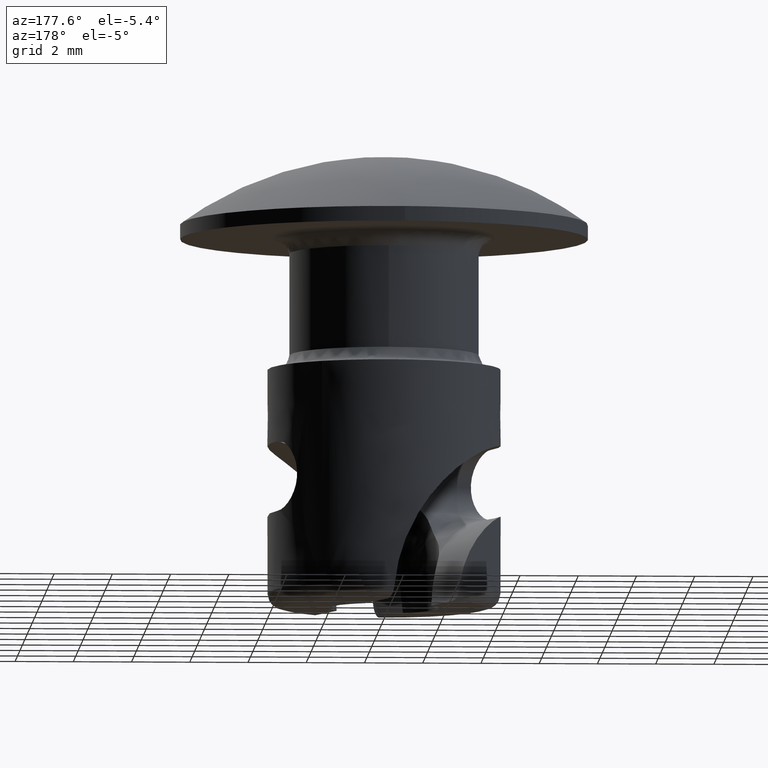
[diagram: clean part render]
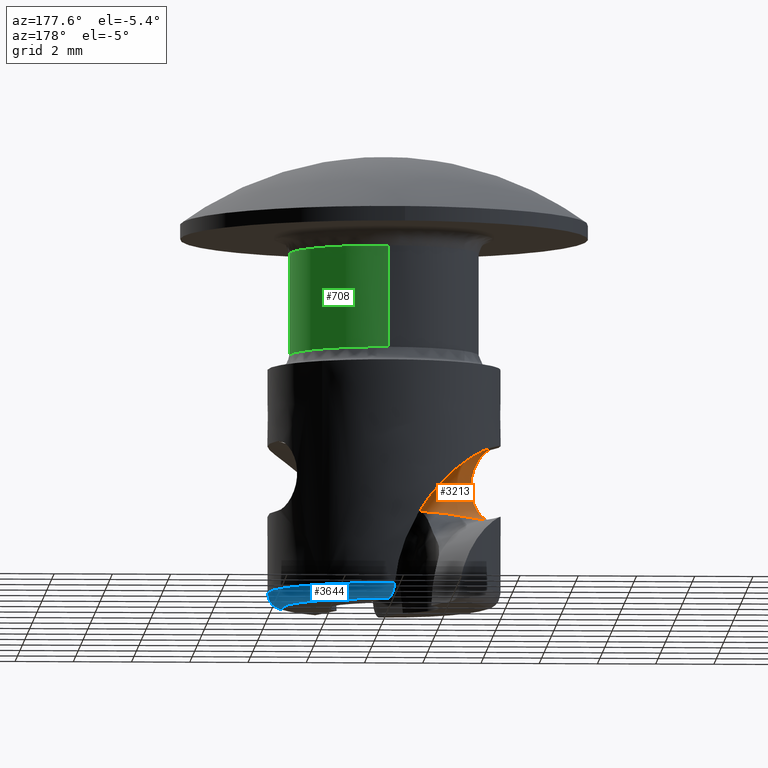
[diagram: same view with three faces highlighted in distinct colors, each labeled with its STEP entity id]
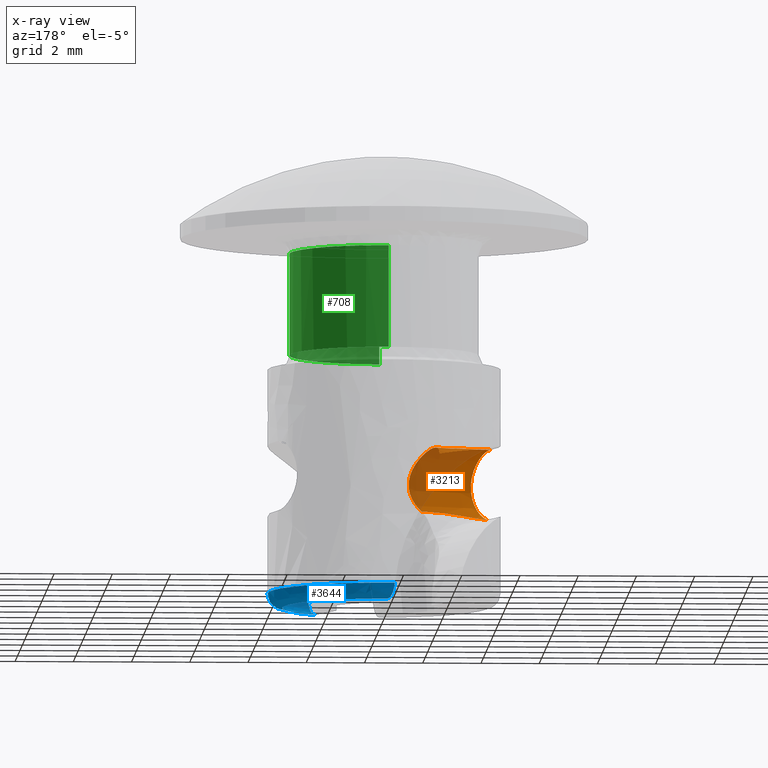
[diagram: x-ray of the same camera — body ghosted, the three highlighted faces saturated]
A machine part, auxiliary view with three faces highlighted in distinct colors.
The next image is the same camera in x-ray (body ghosted, the three faces saturated) — at least one of them is partly hidden behind the body in this view.
Their STEP definitions:

[orange] entity #3213 — the highlighted face is a freeform B-spline surface patch.
#1164=CARTESIAN_POINT('',(-3.708735643717875,-1.498425815653404,-7.100000000000001));
#1165=VERTEX_POINT('',#1164);
#1166=CARTESIAN_POINT('',(-1.898896847195745,0.064736108240685,-7.380760228911340));
#1167=VERTEX_POINT('',#1166);
#1168=CARTESIAN_POINT('',(-3.708735643717875,-1.498425815653404,-7.100000000000001));
#1169=CARTESIAN_POINT('',(-3.710386453232325,-1.489196852446455,-7.100068142243043));
#1170=CARTESIAN_POINT('',(-3.714214481037948,-1.467796001855254,-7.100226155871399));
#1171=CARTESIAN_POINT('',(-3.700999344181360,-1.431293841637874,-7.101366021683869));
#1172=CARTESIAN_POINT('',(-3.678070808442839,-1.388549220752003,-7.103257037905349));
#1173=CARTESIAN_POINT('',(-3.642020029823561,-1.338198967356137,-7.106217927121737));
#1174=CARTESIAN_POINT('',(-3.593864898574778,-1.280419982242171,-7.110404282783682));
#1175=CARTESIAN_POINT('',(-3.533027782695131,-1.215109976291885,-7.116045296349266));
#1176=CARTESIAN_POINT('',(-3.459587618373435,-1.142366680753760,-7.123355109240258));
#1177=CARTESIAN_POINT('',(-3.373425154961361,-1.062260795173573,-7.132564829144597));
#1178=CARTESIAN_POINT('',(-3.274502888659695,-0.974896187154044,-7.143912161318475));
#1179=CARTESIAN_POINT('',(-3.162741271082850,-0.880412771901388,-7.157636030105764));
#1180=CARTESIAN_POINT('',(-3.038137316721293,-0.778879101368198,-7.174007430003282));
#1181=CARTESIAN_POINT('',(-2.787233531452823,-0.582040624438022,-7.208927308146799));
#1182=CARTESIAN_POINT('',(-2.408378123712788,-0.294695881852965,-7.271328472829599));
#1183=CARTESIAN_POINT('',(-2.069827448489790,-0.055852112383694,-7.344045052381786));
#1184=CARTESIAN_POINT('',(-1.898896847195745,0.064736108240685,-7.380760228911340));
#1185=B_SPLINE_CURVE_WITH_KNOTS('',3,(#1168,#1169,#1170,#1171,#1172,#1173,#1174,#1175,#1176,#1177,#1178,#1179,#1180,#1181,#1182,#1183,#1184),.UNSPECIFIED.,.F.,.U.,(4,1,1,1,1,1,1,1,1,1,1,1,1,1,4),(0.0,0.011366425971502,0.026357368484132,0.046197114360368,0.071413319944607,0.102258948170066,0.138870458371748,0.181328750918664,0.229685388931977,0.283975130617349,0.344222465056585,0.410445271268059,0.482656988926023,0.738758493858405,0.999916515789584),.UNSPECIFIED.);
#1186=EDGE_CURVE('',#1165,#1167,#1185,.T.);
#1655=CARTESIAN_POINT('',(-1.337555715592760,-1.349423842862256,-9.236663963031100));
#1656=VERTEX_POINT('',#1655);
#1666=CARTESIAN_POINT('',(-3.708735643717195,-1.498425815655100,-9.500000000000000));
#1667=VERTEX_POINT('',#1666);
#1683=CARTESIAN_POINT('',(-1.337555715592760,-1.349423842862256,-9.236663963031100));
#1684=CARTESIAN_POINT('',(-1.449597428997591,-1.393323958337005,-9.237689944470352));
#1685=CARTESIAN_POINT('',(-1.665490790304757,-1.477916627721316,-9.239665821091686));
#1686=CARTESIAN_POINT('',(-1.984018065734053,-1.581252420455849,-9.258090054720100));
#1687=CARTESIAN_POINT('',(-2.283167802303620,-1.659606081770924,-9.286911477915071));
#1688=CARTESIAN_POINT('',(-2.563976454007749,-1.710629797667233,-9.325059766632526));
#1689=CARTESIAN_POINT('',(-2.827015008560890,-1.732813301009406,-9.369258568397093));
#1690=CARTESIAN_POINT('',(-3.073173302154578,-1.724505233113503,-9.415640363103346));
#1691=CARTESIAN_POINT('',(-3.302442523206412,-1.683284566840836,-9.457967814210614));
#1692=CARTESIAN_POINT('',(-3.516709849021536,-1.611080642470727,-9.492009916046284));
#1693=CARTESIAN_POINT('',(-3.645171148386941,-1.535716884912866,-9.497355117552020));
#1694=CARTESIAN_POINT('',(-3.708735643677130,-1.498425815649185,-9.500000000000000));
#1695=B_SPLINE_CURVE_WITH_KNOTS('',3,(#1683,#1684,#1685,#1686,#1687,#1688,#1689,#1690,#1691,#1692,#1693,#1694),.UNSPECIFIED.,.F.,.U.,(4,1,1,1,1,1,1,1,1,4),(0.000000691033349,0.145114190416765,0.279620765688647,0.404129572421703,0.519408920940005,0.626425579952520,0.726385614219735,0.820765035768605,0.911311966358701,1.0),.UNSPECIFIED.);
#1696=EDGE_CURVE('',#1656,#1667,#1695,.T.);
#2305=CARTESIAN_POINT('',(-1.612172769168467,0.223170469228702,-7.415061260543856));
#2306=CARTESIAN_POINT('',(-1.714721641054724,0.181840315298830,-7.414952191650670));
#2307=CARTESIAN_POINT('',(-1.919618646212488,0.098683161717521,-7.415365771946548));
#2308=CARTESIAN_POINT('',(-2.226853675782332,-0.026326011831136,-7.416556021256146));
#2309=CARTESIAN_POINT('',(-2.534617323434692,-0.150026809146506,-7.415746666482884));
#2310=CARTESIAN_POINT('',(-2.944772652289246,-0.315446821155888,-7.415324375961210));
#2311=CARTESIAN_POINT('',(-3.303574487007340,-0.460397432180070,-7.415322789085359));
#2312=CARTESIAN_POINT('',(-3.611120826007044,-0.584636087517758,-7.415307836104930));
#2313=CARTESIAN_POINT('',(-3.726449958891982,-0.631227425328707,-7.415304758083908));
#2314=CARTESIAN_POINT('',(-3.803336228682831,-0.662287868714538,-7.415301759441087));
#2315=CARTESIAN_POINT('',(-3.835372159543206,-0.675229756968995,-7.415300547384005));
#2316=CARTESIAN_POINT('',(-3.861000913332802,-0.685583245046053,-7.415299525167211));
#2317=CARTESIAN_POINT('',(-3.880222479537792,-0.693348358968356,-7.415298748298612));
#2318=CARTESIAN_POINT('',(-3.896240453342164,-0.699819282368742,-7.415298087400051));
#2319=CARTESIAN_POINT('',(-3.909054833344198,-0.704996018716587,-7.415297551688044));
#2320=CARTESIAN_POINT('',(-3.921869214048127,-0.710172753327181,-7.415297011098836));
#2321=CARTESIAN_POINT('',(-3.937887191202319,-0.716643668436469,-7.415296326492313));
#2322=CARTESIAN_POINT('',(-3.963515957339881,-0.726997125951224,-7.415295212701481));
#2323=CARTESIAN_POINT('',(-4.008366304975885,-0.745115659535645,-7.415293216849501));
#2324=CARTESIAN_POINT('',(-4.046809471112568,-0.760645803903700,-7.415291432312533));
#2325=CARTESIAN_POINT('',(-4.072438252416594,-0.770999223880121,-7.415290216108162));
#2326=CARTESIAN_POINT('',(-1.605308475316878,0.206180738398920,-7.398212250034117));
#2327=CARTESIAN_POINT('',(-1.707869522265669,0.164880718819321,-7.398065003037738));
#2328=CARTESIAN_POINT('',(-1.912752987592754,0.081690052966585,-7.398513926038133));
#2329=CARTESIAN_POINT('',(-2.219956832470942,-0.043396305435854,-7.399831306386271));
#2330=CARTESIAN_POINT('',(-2.527760120668330,-0.166998988916861,-7.398869847464098));
#2331=CARTESIAN_POINT('',(-2.937901272047192,-0.332454091425144,-7.398496368572096));
#2332=CARTESIAN_POINT('',(-3.296703473460298,-0.477403794846930,-7.398495963588476));
#2333=CARTESIAN_POINT('',(-3.604247800941950,-0.601647428868660,-7.398488630259659));
#2334=CARTESIAN_POINT('',(-3.719576783100933,-0.648239139739603,-7.398486145954498));
#2335=CARTESIAN_POINT('',(-3.796462881828642,-0.679300006521746,-7.398483771568070));
#2336=CARTESIAN_POINT('',(-3.828498761950772,-0.692242020357818,-7.398482743838573));
#2337=CARTESIAN_POINT('',(-3.854127474679576,-0.702595610063945,-7.398481869461406));
#2338=CARTESIAN_POINT('',(-3.873349012458219,-0.710360794343960,-7.398481194194758));
#2339=CARTESIAN_POINT('',(-3.889366963610579,-0.716831773810066,-7.398480613828208));
#2340=CARTESIAN_POINT('',(-3.902181326237263,-0.722008553163430,-7.398480139710538));
#2341=CARTESIAN_POINT('',(-3.914995689986145,-0.727185329739257,-7.398479659564844));
#2342=CARTESIAN_POINT('',(-3.931013646760191,-0.733656295291197,-7.398479047983979));
#2343=CARTESIAN_POINT('',(-3.956642381983104,-0.744009829322428,-7.398478043555091));
#2344=CARTESIAN_POINT('',(-4.001492679841844,-0.762128486109955,-7.398476213000564));
#2345=CARTESIAN_POINT('',(-4.039935809271587,-0.777658721330913,-7.398474564663561));
#2346=CARTESIAN_POINT('',(-4.065564568342954,-0.788012196335118,-7.398473419691637));
#2347=CARTESIAN_POINT('',(-1.591211258883126,0.171288888219288,-7.365735048391554));
#2348=CARTESIAN_POINT('',(-1.693760808591860,0.129960411959647,-7.365624070376724));
#2349=CARTESIAN_POINT('',(-1.898793907560646,0.047140102526745,-7.365588953662576));
#2350=CARTESIAN_POINT('',(-2.205730282009415,-0.078608268706002,-7.367826874360685));
#2351=CARTESIAN_POINT('',(-2.513715670376098,-0.201760238256737,-7.366195359996842));
#2352=CARTESIAN_POINT('',(-2.923782501054272,-0.367399291033912,-7.366087749929234));
#2353=CARTESIAN_POINT('',(-3.282599999735564,-0.512311132371920,-7.366037757548056));
#2354=CARTESIAN_POINT('',(-3.590136317249292,-0.636574591768541,-7.366060154358229));
#2355=CARTESIAN_POINT('',(-3.705465581627303,-0.683165604122575,-7.366056686659941));
#2356=CARTESIAN_POINT('',(-3.782351230301128,-0.714227584827652,-7.366055938045084));
#2357=CARTESIAN_POINT('',(-3.814387029147240,-0.727169799829015,-7.366055196281701));
#2358=CARTESIAN_POINT('',(-3.840015659320302,-0.737523593867864,-7.366054611699506));
#2359=CARTESIAN_POINT('',(-3.859237143360188,-0.745288911156025,-7.366054124621324));
#2360=CARTESIAN_POINT('',(-3.875255050927042,-0.751759998500091,-7.366053696095484));
#2361=CARTESIAN_POINT('',(-3.888069380370363,-0.756936859985198,-7.366053336648243));
#2362=CARTESIAN_POINT('',(-3.900883711854176,-0.762113716419907,-7.366052964694525));
#2363=CARTESIAN_POINT('',(-3.916901630019319,-0.768584777532276,-7.366052478014854));
#2364=CARTESIAN_POINT('',(-3.942530306500444,-0.778938456954596,-7.366051667623763));
#2365=CARTESIAN_POINT('',(-3.987380508337274,-0.797057351404794,-7.366050208232453));
#2366=CARTESIAN_POINT('',(-4.025823569280349,-0.812587756136276,-7.366048723859492));
#2367=CARTESIAN_POINT('',(-4.051452286361051,-0.822941335071072,-7.366047742456437));
#2368=CARTESIAN_POINT('',(-1.569020597860986,0.116365051062493,-7.320814050384826));
#2369=CARTESIAN_POINT('',(-1.671545106000825,0.074974594718043,-7.320784333774271));
#2370=CARTESIAN_POINT('',(-1.876619513213482,-0.007743473179224,-7.320603161220080));
#2371=CARTESIAN_POINT('',(-2.183566796025943,-0.133464845252708,-7.322813521735434));
#2372=CARTESIAN_POINT('',(-2.491605404872975,-0.256485089435140,-7.320973286711602));
#2373=CARTESIAN_POINT('',(-2.901584796536194,-0.422340561462458,-7.321182508869049));
#2374=CARTESIAN_POINT('',(-3.260416903127477,-0.567216246938829,-7.321090576184219));
#2375=CARTESIAN_POINT('',(-3.567944628480088,-0.691500972689685,-7.321143427648019));
#2376=CARTESIAN_POINT('',(-3.683274081824700,-0.738091517334765,-7.321139128092915));
#2377=CARTESIAN_POINT('',(-3.760159219593860,-0.769154762573809,-7.321140060709212));
#2378=CARTESIAN_POINT('',(-3.792194916523936,-0.782097229826324,-7.321139634448302));
#2379=CARTESIAN_POINT('',(-3.817823448056331,-0.792451268009495,-7.321139365872941));
#2380=CARTESIAN_POINT('',(-3.837044867565665,-0.800216745016447,-7.321139078324289));
#2381=CARTESIAN_POINT('',(-3.853062723082382,-0.806687961189180,-7.321138810736272));
#2382=CARTESIAN_POINT('',(-3.865877012913823,-0.811864920717172,-7.321138574622552));
#2383=CARTESIAN_POINT('',(-3.878691305398236,-0.817041873678824,-7.321138334512721));
#2384=CARTESIAN_POINT('',(-3.894709176533260,-0.823513051194872,-7.321138020319063));
#2385=CARTESIAN_POINT('',(-3.920337782446128,-0.833866905279835,-7.321137450301793));
#2386=CARTESIAN_POINT('',(-3.965187874879333,-0.851986070513623,-7.321136163601614));
#2387=CARTESIAN_POINT('',(-4.003630850366419,-0.867516686756191,-7.321135163492179));
#2388=CARTESIAN_POINT('',(-4.029259516796008,-0.877870391056945,-7.321134247908669));
#2389=CARTESIAN_POINT('',(-1.545864124032500,0.059050742290329,-7.279761582693141));
#2390=CARTESIAN_POINT('',(-1.648384580499130,0.017650257698440,-7.279740884686689));
#2391=CARTESIAN_POINT('',(-1.853395969615986,-0.065223785526843,-7.279782315304722));
#2392=CARTESIAN_POINT('',(-2.160667460421075,-0.190142714312388,-7.280837285445150));
#2393=CARTESIAN_POINT('',(-2.468493327872639,-0.313689512154017,-7.279702779423403));
#2394=CARTESIAN_POINT('',(-2.878448068506196,-0.479605997647203,-7.280061674097765));
#2395=CARTESIAN_POINT('',(-3.237271767664426,-0.624502492259608,-7.279997884637030));
#2396=CARTESIAN_POINT('',(-3.544799202980122,-0.748787935877332,-7.280053224947674));
#2397=CARTESIAN_POINT('',(-3.660128153776459,-0.795379724373578,-7.280049855460147));
#2398=CARTESIAN_POINT('',(-3.737013079238357,-0.826443495091763,-7.280051479183601));
#2399=CARTESIAN_POINT('',(-3.769048687743557,-0.839386181203621,-7.280051274700470));
#2400=CARTESIAN_POINT('',(-3.794677157401481,-0.849740372531548,-7.280051162047274));
#2401=CARTESIAN_POINT('',(-3.813898531091357,-0.857505962945687,-7.280051004980113));
#2402=CARTESIAN_POINT('',(-3.829916350351822,-0.863977268855831,-7.280050840594212));
#2403=CARTESIAN_POINT('',(-3.842730612068606,-0.869154297970072,-7.280050679460182));
#2404=CARTESIAN_POINT('',(-3.855544878476056,-0.874331315474498,-7.280050470378589));
#2405=CARTESIAN_POINT('',(-3.871562719149138,-0.880802568386533,-7.280050140772008));
#2406=CARTESIAN_POINT('',(-3.897191275876814,-0.891156544209169,-7.280049621041425));
#2407=CARTESIAN_POINT('',(-3.942041271775627,-0.909275948374066,-7.280049180767852));
#2408=CARTESIAN_POINT('',(-3.980484193506738,-0.924806697667398,-7.280047520859425));
#2409=CARTESIAN_POINT('',(-4.006112820810538,-0.935160498807924,-7.280047024620805));
#2410=CARTESIAN_POINT('',(-1.497779456240400,-0.059963038367980,-7.205533351032612));
#2411=CARTESIAN_POINT('',(-1.600296225336511,-0.101372649526120,-7.205521829334859));
#2412=CARTESIAN_POINT('',(-1.805291093196347,-0.184287584315162,-7.205636214006164));
#2413=CARTESIAN_POINT('',(-2.112806065361276,-0.308603875326868,-7.205742088261957));
#2414=CARTESIAN_POINT('',(-2.420388050912274,-0.432754302315856,-7.205566440321289));
#2415=CARTESIAN_POINT('',(-2.830414284791883,-0.598493835738978,-7.205640069975024));
#2416=CARTESIAN_POINT('',(-3.189193593457274,-0.743500200724228,-7.205773552679972));
#2417=CARTESIAN_POINT('',(-3.496742270605132,-0.867733068939642,-7.205722371631375));
#2418=CARTESIAN_POINT('',(-3.612067621945282,-0.914333766406436,-7.205732801996868));
#2419=CARTESIAN_POINT('',(-3.688953143749545,-0.945396061124832,-7.205730474476900));
#2420=CARTESIAN_POINT('',(-3.720988616136321,-0.958339084141758,-7.205730559086129));
#2421=CARTESIAN_POINT('',(-3.746617065281775,-0.968693326239854,-7.205730363646636));
#2422=CARTESIAN_POINT('',(-3.765838411604881,-0.976458984389154,-7.205730096889041));
#2423=CARTESIAN_POINT('',(-3.781856213074878,-0.982930334332270,-7.205729836114294));
#2424=CARTESIAN_POINT('',(-3.794670459769159,-0.988107400628528,-7.205729645634836));
#2425=CARTESIAN_POINT('',(-3.807484701086484,-0.993284480233221,-7.205729724036694));
#2426=CARTESIAN_POINT('',(-3.823502502799987,-0.999755829573637,-7.205730141850259));
#2427=CARTESIAN_POINT('',(-3.849131016841790,-1.010109911047564,-7.205730230918503));
#2428=CARTESIAN_POINT('',(-3.893981054868957,-1.028229210941079,-7.205725145322822));
#2429=CARTESIAN_POINT('',(-3.932423852620100,-1.043760267095735,-7.205729721289425));
#2430=CARTESIAN_POINT('',(-3.958052440049012,-1.054114166930114,-7.205726963807105));
#2431=CARTESIAN_POINT('',(-1.454316586836566,-0.167537461640975,-7.160481461309396));
#2432=CARTESIAN_POINT('',(-1.556831107303570,-0.208952638353865,-7.160476983144488));
#2433=CARTESIAN_POINT('',(-1.761841282172478,-0.291829686949581,-7.160551880195361));
#2434=CARTESIAN_POINT('',(-2.069350392917621,-0.416160485490623,-7.160659785502281));
#2435=CARTESIAN_POINT('',(-2.376897954570202,-0.540396114654935,-7.160625020281434));
#2436=CARTESIAN_POINT('',(-2.786987838775635,-0.705978107925153,-7.160460568138732));
#2437=CARTESIAN_POINT('',(-3.145753133697066,-0.851019158158864,-7.160629306571867));
#2438=CARTESIAN_POINT('',(-3.453302314366431,-0.975250780114276,-7.160582312315054));
#2439=CARTESIAN_POINT('',(-3.568629706679442,-1.021846425993785,-7.160586105810319));
#2440=CARTESIAN_POINT('',(-3.645515268689580,-1.052908621199109,-7.160585220247742));
#2441=CARTESIAN_POINT('',(-3.677550850524618,-1.065851373321963,-7.160584928682276));
#2442=CARTESIAN_POINT('',(-3.703179360934834,-1.076205463784380,-7.160584346923580));
#2443=CARTESIAN_POINT('',(-3.722400722427566,-1.083971084387524,-7.160584233503497));
#2444=CARTESIAN_POINT('',(-3.738418525848351,-1.090442429502266,-7.160584109216591));
#2445=CARTESIAN_POINT('',(-3.751232767988932,-1.095619507069333,-7.160583934369400));
#2446=CARTESIAN_POINT('',(-3.764047031390315,-1.100796532014041,-7.160583129726693));
#2447=CARTESIAN_POINT('',(-3.780064876494039,-1.107267773959845,-7.160581360278741));
#2448=CARTESIAN_POINT('',(-3.805693391952302,-1.117621851927910,-7.160579712992286));
#2449=CARTESIAN_POINT('',(-3.850543068622094,-1.135742046212701,-7.160588234464072));
#2450=CARTESIAN_POINT('',(-3.888985984276249,-1.151272810547037,-7.160575247807144));
#2451=CARTESIAN_POINT('',(-3.914614521170596,-1.161626835458907,-7.160579368336693));
#2452=CARTESIAN_POINT('',(-1.382122777048542,-0.346223488549772,-7.112069750705599));
#2453=CARTESIAN_POINT('',(-1.484633793718534,-0.387647337468340,-7.112080828390511));
#2454=CARTESIAN_POINT('',(-1.689662167351537,-0.470479342522785,-7.112053986184090));
#2455=CARTESIAN_POINT('',(-1.997196138167256,-0.594748610203313,-7.112089657188884));
#2456=CARTESIAN_POINT('',(-2.304739325861555,-0.718995065298954,-7.112082788723071));
#2457=CARTESIAN_POINT('',(-2.714786334556672,-0.884683179227059,-7.112110156117329));
#2458=CARTESIAN_POINT('',(-3.073587704363304,-1.029634940947990,-7.112093776404535));
#2459=CARTESIAN_POINT('',(-3.381127423210439,-1.153889981745361,-7.112099526780538));
#2460=CARTESIAN_POINT('',(-3.496455122247925,-1.200484868454825,-7.112098674352385));
#2461=CARTESIAN_POINT('',(-3.573340469298981,-1.231547595702762,-7.112091635035596));
#2462=CARTESIAN_POINT('',(-3.605375951675340,-1.244490593994598,-7.112090824653329));
#2463=CARTESIAN_POINT('',(-3.631004291301832,-1.254845107161762,-7.112090752287984));
#2464=CARTESIAN_POINT('',(-3.650225621200741,-1.262610805962397,-7.112089602874351));
#2465=CARTESIAN_POINT('',(-3.666243407335076,-1.269082193862623,-7.112088698654174));
#2466=CARTESIAN_POINT('',(-3.679057646753322,-1.274259278167703,-7.112088252274037));
#2467=CARTESIAN_POINT('',(-3.691871814012087,-1.279436541073850,-7.112090139025095));
#2468=CARTESIAN_POINT('',(-3.707889476890264,-1.285908234043907,-7.112095326388516));
#2469=CARTESIAN_POINT('',(-3.733517903638351,-1.296262531577453,-7.112099202215167));
#2470=CARTESIAN_POINT('',(-3.778368571406986,-1.314380272805470,-7.112063521527370));
#2471=CARTESIAN_POINT('',(-3.816810911065241,-1.329912462780297,-7.112108358445170));
#2472=CARTESIAN_POINT('',(-3.842439487289233,-1.340266390347837,-7.112090671351684));
#2473=CARTESIAN_POINT('',(-1.345273551836011,-0.437428560940713,-7.099983720398764));
#2474=CARTESIAN_POINT('',(-1.447787184479768,-0.478845935094202,-7.099981094433432));
#2475=CARTESIAN_POINT('',(-1.652810967955223,-0.561689301192166,-7.100004690265615));
#2476=CARTESIAN_POINT('',(-1.960347659677395,-0.685951834389990,-7.100011850967778));
#2477=CARTESIAN_POINT('',(-2.267887890856202,-0.810205607121430,-7.100004185393339));
#2478=CARTESIAN_POINT('',(-2.677942342652626,-0.975875298719360,-7.099999838318336));
#2479=CARTESIAN_POINT('',(-3.036736253634276,-1.120845521687939,-7.100013165066035));
#2480=CARTESIAN_POINT('',(-3.344278629351832,-1.245093986497412,-7.100006559293297));
#2481=CARTESIAN_POINT('',(-3.459606922249638,-1.291687403350367,-7.100007536684326));
#2482=CARTESIAN_POINT('',(-3.536492157022819,-1.322750408495936,-7.100015077237440));
#2483=CARTESIAN_POINT('',(-3.568527668891904,-1.335693333790675,-7.100017928661940));
#2484=CARTESIAN_POINT('',(-3.594156074537366,-1.346047683555071,-7.100020014539774));
#2485=CARTESIAN_POINT('',(-3.613377325439832,-1.353813577878846,-7.100021886457047));
#2486=CARTESIAN_POINT('',(-3.629395035235179,-1.360285154724784,-7.100022546949612));
#2487=CARTESIAN_POINT('',(-3.642209209463862,-1.365462400379770,-7.100021769258292));
#2488=CARTESIAN_POINT('',(-3.655023580146762,-1.370639159793288,-7.100014862555431));
#2489=CARTESIAN_POINT('',(-3.671041688206054,-1.377109750900937,-7.099998989417751));
#2490=CARTESIAN_POINT('',(-3.696670295464202,-1.387463601656216,-7.099984144206171));
#2491=CARTESIAN_POINT('',(-3.741518094205723,-1.405588443978586,-7.100078483048273));
#2492=CARTESIAN_POINT('',(-3.779961985441076,-1.421116793663688,-7.099943245836787));
#2493=CARTESIAN_POINT('',(-3.805590386240568,-1.431471155422286,-7.099999006148356));
#2494=CARTESIAN_POINT('',(-1.308425179936231,-0.528631521307568,-7.099990119154501));
#2495=CARTESIAN_POINT('',(-1.410938332829155,-0.570050082886550,-7.099991338326226));
#2496=CARTESIAN_POINT('',(-1.615963839612602,-0.652889183645713,-7.099997192637711));
#2497=CARTESIAN_POINT('',(-1.923502103677547,-0.777147825156923,-7.100003604141426));
#2498=CARTESIAN_POINT('',(-2.231043300407578,-0.901399208064187,-7.099997118969190));
#2499=CARTESIAN_POINT('',(-2.641094304180972,-1.067077433822285,-7.100005572529461));
#2500=CARTESIAN_POINT('',(-2.999889995544494,-1.212043250189189,-7.100010783540560));
#2501=CARTESIAN_POINT('',(-3.307431418433303,-1.336294073333589,-7.100005171871216));
#2502=CARTESIAN_POINT('',(-3.422759475573654,-1.382888073706977,-7.100001274767737));
#2503=CARTESIAN_POINT('',(-3.499644878800158,-1.413950661915757,-7.099996996605950));
#2504=CARTESIAN_POINT('',(-3.531680463437822,-1.426893407101865,-7.099994964712321));
#2505=CARTESIAN_POINT('',(-3.557308930437186,-1.437247605009963,-7.099993483274613));
#2506=CARTESIAN_POINT('',(-3.576530278539201,-1.445013258756307,-7.099992619680718));
#2507=CARTESIAN_POINT('',(-3.592548066015557,-1.451484643334914,-7.099992292332012));
#2508=CARTESIAN_POINT('',(-3.605362294749370,-1.456661754084908,-7.099992260169668));
#2509=CARTESIAN_POINT('',(-3.618176522332405,-1.461838867683180,-7.099992598839472));
#2510=CARTESIAN_POINT('',(-3.634194310663812,-1.468310250145462,-7.099992022224453));
#2511=CARTESIAN_POINT('',(-3.659822766804654,-1.478664474929354,-7.099994405559767));
#2512=CARTESIAN_POINT('',(-3.704672801355910,-1.496783783426057,-7.099927340083124));
#2513=CARTESIAN_POINT('',(-3.743115062420661,-1.512316167926715,-7.100087905178388));
#2514=CARTESIAN_POINT('',(-3.768743710829150,-1.522669916831281,-7.100036306400008));
#2515=CARTESIAN_POINT('',(-1.271250218449813,-0.620642819616936,-7.099994876313550));
#2516=CARTESIAN_POINT('',(-1.373763409911923,-0.662061285733792,-7.099996054757063));
#2517=CARTESIAN_POINT('',(-1.578788658632819,-0.744901025220455,-7.099996599868724));
#2518=CARTESIAN_POINT('',(-1.886328579413167,-0.869155566215374,-7.099999942110318));
#2519=CARTESIAN_POINT('',(-2.193870487152911,-0.993405189311085,-7.099995079229343));
#2520=CARTESIAN_POINT('',(-2.603920761022106,-1.159085221646252,-7.100004857129205));
#2521=CARTESIAN_POINT('',(-2.962716124751387,-1.304051848936710,-7.100011259598662));
#2522=CARTESIAN_POINT('',(-3.270257232018248,-1.428303453273186,-7.100003903629440));
#2523=CARTESIAN_POINT('',(-3.385585222043595,-1.474897619762109,-7.099995163839741));
#2524=CARTESIAN_POINT('',(-3.462470641876704,-1.505960166868080,-7.099982828002111));
#2525=CARTESIAN_POINT('',(-3.494506201786294,-1.518902973258345,-7.099976983850720));
#2526=CARTESIAN_POINT('',(-3.520134627240928,-1.529257273993304,-7.099972244446455));
#2527=CARTESIAN_POINT('',(-3.539355934681813,-1.537023028379519,-7.099968861252565));
#2528=CARTESIAN_POINT('',(-3.555373675756262,-1.543494527806926,-7.099966347137153));
#2529=CARTESIAN_POINT('',(-3.568187865169756,-1.548671735878164,-7.099964766493250));
#2530=CARTESIAN_POINT('',(-3.581002055895821,-1.553848940700676,-7.099963395313601));
#2531=CARTESIAN_POINT('',(-3.597019806853677,-1.560320415665784,-7.099963491849371));
#2532=CARTESIAN_POINT('',(-3.622648213263819,-1.570674763537532,-7.099963864917938));
#2533=CARTESIAN_POINT('',(-3.667497833547180,-1.588795097383693,-7.100026129401685));
#2534=CARTESIAN_POINT('',(-3.705941091959002,-1.604325013362682,-7.099901464476477));
#2535=CARTESIAN_POINT('',(-3.731569322821766,-1.614679795729615,-7.099950793347770));
#2536=CARTESIAN_POINT('',(-1.234077407166951,-0.712648795983442,-7.112305495264110));
#2537=CARTESIAN_POINT('',(-1.336591637412410,-0.754064691020173,-7.112304011082432));
#2538=CARTESIAN_POINT('',(-1.541618531660263,-0.836900357682939,-7.112317466832385));
#2539=CARTESIAN_POINT('',(-1.849158260929589,-0.961155372684476,-7.112310872940090));
#2540=CARTESIAN_POINT('',(-2.156698023306450,-1.085410305741951,-7.112301205565411));
#2541=CARTESIAN_POINT('',(-2.566748680213134,-1.251089390025653,-7.112311926657806));
#2542=CARTESIAN_POINT('',(-2.925543819107124,-1.396056573803226,-7.112317941788414));
#2543=CARTESIAN_POINT('',(-3.233084847926403,-1.520308372304365,-7.112312677432405));
#2544=CARTESIAN_POINT('',(-3.348412773977763,-1.566902697134531,-7.112310311976962));
#2545=CARTESIAN_POINT('',(-3.425298221027535,-1.597965176876869,-7.112313455166667));
#2546=CARTESIAN_POINT('',(-3.457333884674454,-1.610907726508126,-7.112316203194699));
#2547=CARTESIAN_POINT('',(-3.482962450107421,-1.621261680784403,-7.112319009145229));
#2548=CARTESIAN_POINT('',(-3.502183884560132,-1.629027120805183,-7.112321200274624));
#2549=CARTESIAN_POINT('',(-3.518201769679266,-1.635498263709333,-7.112322852020330));
#2550=CARTESIAN_POINT('',(-3.531016079227099,-1.640675174437521,-7.112323792227232));
#2551=CARTESIAN_POINT('',(-3.543830380283918,-1.645852106181716,-7.112324423254851));
#2552=CARTESIAN_POINT('',(-3.559848221526220,-1.652323357684879,-7.112324069367538));
#2553=CARTESIAN_POINT('',(-3.585476703728319,-1.662677517964875,-7.112322012245355));
#2554=CARTESIAN_POINT('',(-3.630326490630970,-1.680797439413647,-7.112297366883641));
#2555=CARTESIAN_POINT('',(-3.668769026556447,-1.696329143609838,-7.112328363195287));
#2556=CARTESIAN_POINT('',(-3.694397597148821,-1.706683085116129,-7.112310626588703));
#2557=CARTESIAN_POINT('',(-1.125471329567683,-0.981458387295258,-7.185928961603754));
#2558=CARTESIAN_POINT('',(-1.227984175129778,-1.022877709545066,-7.185921241492819));
#2559=CARTESIAN_POINT('',(-1.433007814531141,-1.105721432239076,-7.185885038979715));
#2560=CARTESIAN_POINT('',(-1.740551255789349,-1.229967259741752,-7.185907252610537));
#2561=CARTESIAN_POINT('',(-2.048095042830609,-1.354212231400968,-7.185932505454295));
#2562=CARTESIAN_POINT('',(-2.458148061372691,-1.519885470429414,-7.185935545333628));
#2563=CARTESIAN_POINT('',(-2.816942964485802,-1.664853237785390,-7.185943338135808));
#2564=CARTESIAN_POINT('',(-3.124484340708144,-1.789104176433401,-7.185943826059192));
#2565=CARTESIAN_POINT('',(-3.239812876275392,-1.835696992658152,-7.185943431057687));
#2566=CARTESIAN_POINT('',(-3.316698474054454,-1.866759099332236,-7.185940069073201));
#2567=CARTESIAN_POINT('',(-3.348734062084962,-1.879701836120759,-7.185937824515865));
#2568=CARTESIAN_POINT('',(-3.374362494477813,-1.890056119683017,-7.185935576217597));
#2569=CARTESIAN_POINT('',(-3.393583816886037,-1.897821837023755,-7.185933758465792));
#2570=CARTESIAN_POINT('',(-3.409601468242887,-1.904293558510108,-7.185931989632449));
#2571=CARTESIAN_POINT('',(-3.422415559442799,-1.909471009668598,-7.185930656962679));
#2572=CARTESIAN_POINT('',(-3.435229676454892,-1.914648396939670,-7.185929534616098));
#2573=CARTESIAN_POINT('',(-3.451247455795628,-1.921119801654654,-7.185929066365807));
#2574=CARTESIAN_POINT('',(-3.476876154115511,-1.931473427024127,-7.185929708434347));
#2575=CARTESIAN_POINT('',(-3.521726508313146,-1.949591944367934,-7.185940170382524));
#2576=CARTESIAN_POINT('',(-3.560169144642289,-1.965123400056236,-7.185924650123158));
#2577=CARTESIAN_POINT('',(-3.585797608928418,-1.975477604679824,-7.185930904420114));
#2578=CARTESIAN_POINT('',(-1.058888488670819,-1.146256772850674,-7.282207868980847));
#2579=CARTESIAN_POINT('',(-1.161402365952807,-1.187673541503031,-7.282210105527324));
#2580=CARTESIAN_POINT('',(-1.366432373329380,-1.270501502898493,-7.282226538443266));
#2581=CARTESIAN_POINT('',(-1.673968605060092,-1.394765174615620,-7.282204504399389));
#2582=CARTESIAN_POINT('',(-1.981506704109995,-1.519024224553566,-7.282193440324813));
#2583=CARTESIAN_POINT('',(-2.391558666675014,-1.684700077218087,-7.282199967706917));
#2584=CARTESIAN_POINT('',(-2.750354502950478,-1.829665534915195,-7.282205182585443));
#2585=CARTESIAN_POINT('',(-3.057894407296596,-1.953920116586279,-7.282200303046794));
#2586=CARTESIAN_POINT('',(-3.173221365340120,-2.000516837320955,-7.282197157358280));
#2587=CARTESIAN_POINT('',(-3.250106485755267,-2.031580125512709,-7.282196569085696));
#2588=CARTESIAN_POINT('',(-3.282142144508736,-2.044522687255684,-7.282196881127905));
#2589=CARTESIAN_POINT('',(-3.307770746479339,-2.054876551098097,-7.282197492141941));
#2590=CARTESIAN_POINT('',(-3.326992177149053,-2.062642000482129,-7.282198057092338));
#2591=CARTESIAN_POINT('',(-3.343010349793413,-2.069112431736061,-7.282199313162259));
#2592=CARTESIAN_POINT('',(-3.355824981147622,-2.074288545965177,-7.282200458387585));
#2593=CARTESIAN_POINT('',(-3.368639561204974,-2.079464787158522,-7.282201353607142));
#2594=CARTESIAN_POINT('',(-3.384657503108549,-2.085935789516183,-7.282201215185507));
#2595=CARTESIAN_POINT('',(-3.410285641952003,-2.096290799639011,-7.282198859149409));
#2596=CARTESIAN_POINT('',(-3.455134691965361,-2.114412544953571,-7.282190727696112));
#2597=CARTESIAN_POINT('',(-3.493578134760711,-2.129942004567100,-7.282196474881963));
#2598=CARTESIAN_POINT('',(-3.519206826220421,-2.140295646916103,-7.282193977872832));
#2599=CARTESIAN_POINT('',(-0.949117980552981,-1.417948432079192,-7.551875567483680));
#2600=CARTESIAN_POINT('',(-1.051631273173322,-1.459366647820531,-7.551871947158719));
#2601=CARTESIAN_POINT('',(-1.256657817140867,-1.542203181457857,-7.551864584881271));
#2602=CARTESIAN_POINT('',(-1.564200501218863,-1.666450883048132,-7.551871018026003));
#2603=CARTESIAN_POINT('',(-1.871740882276441,-1.790704284816437,-7.551873522601927));
#2604=CARTESIAN_POINT('',(-2.281793764739514,-1.956377860652392,-7.551875734666346));
#2605=CARTESIAN_POINT('',(-2.640589434818156,-2.101343729701246,-7.551879204960682));
#2606=CARTESIAN_POINT('',(-2.948131855877286,-2.225592082286339,-7.551883429207076));
#2607=CARTESIAN_POINT('',(-3.063462905627170,-2.272178675688002,-7.551887577448261));
#2608=CARTESIAN_POINT('',(-3.140349710484766,-2.303237794736587,-7.551888641521613));
#2609=CARTESIAN_POINT('',(-3.172385476435318,-2.316180091157355,-7.551888382031502));
#2610=CARTESIAN_POINT('',(-3.198014148634953,-2.326533781176741,-7.551888224501263));
#2611=CARTESIAN_POINT('',(-3.217235983259324,-2.334298230737479,-7.551888727421902));
#2612=CARTESIAN_POINT('',(-3.233253392729615,-2.340770550914335,-7.551887493982656));
#2613=CARTESIAN_POINT('',(-3.246067024941177,-2.345949138109348,-7.551885914398174));
#2614=CARTESIAN_POINT('',(-3.258880693956205,-2.351127634212544,-7.551884446663222));
#2615=CARTESIAN_POINT('',(-3.274897999015895,-2.357600212814816,-7.551883241743393));
#2616=CARTESIAN_POINT('',(-3.300526525080379,-2.367954264531549,-7.551883278174218));
#2617=CARTESIAN_POINT('',(-3.345376074926212,-2.386074772716794,-7.551883608047191));
#2618=CARTESIAN_POINT('',(-3.383817817312804,-2.401608440991507,-7.551879581547505));
#2619=CARTESIAN_POINT('',(-3.409445808172898,-2.411963817386162,-7.551878847054387));
#2620=CARTESIAN_POINT('',(-0.907675277760381,-1.520522765365035,-7.721058766487105));
#2621=CARTESIAN_POINT('',(-1.010188264824565,-1.561941737384731,-7.721057701365732));
#2622=CARTESIAN_POINT('',(-1.215212775616146,-1.644783303311336,-7.721054999330702));
#2623=CARTESIAN_POINT('',(-1.522750183210105,-1.769044064663541,-7.721049200002708));
#2624=CARTESIAN_POINT('',(-1.830289565911031,-1.893299937452338,-7.721048769255726));
#2625=CARTESIAN_POINT('',(-2.240342213652493,-2.058974094244923,-7.721049941234591));
#2626=CARTESIAN_POINT('',(-2.599139071512299,-2.203937023430959,-7.721053495347274));
#2627=CARTESIAN_POINT('',(-2.906676337155632,-2.328198136123447,-7.721048901777856));
#2628=CARTESIAN_POINT('',(-3.021998565798592,-2.374806562540357,-7.721040547824775));
#2629=CARTESIAN_POINT('',(-3.098881613621732,-2.405874980579565,-7.721036772964375));
#2630=CARTESIAN_POINT('',(-3.130917153449748,-2.418817836673488,-7.721036401168084));
#2631=CARTESIAN_POINT('',(-3.156545706893410,-2.429171820624346,-7.721036221322738));
#2632=CARTESIAN_POINT('',(-3.175767041139721,-2.436937508664776,-7.721035871730420));
#2633=CARTESIAN_POINT('',(-3.191785176783950,-2.443408031497286,-7.721036285716594));
#2634=CARTESIAN_POINT('',(-3.204599819656155,-2.448584117218345,-7.721036869107094));
#2635=CARTESIAN_POINT('',(-3.217414454684006,-2.453760222354875,-7.721037411118716));
#2636=CARTESIAN_POINT('',(-3.233432678048691,-2.460230528071542,-7.721037864501954));
#2637=CARTESIAN_POINT('',(-3.259061536528954,-2.470583757029992,-7.721037849070156));
#2638=CARTESIAN_POINT('',(-3.303912401037206,-2.488701011310151,-7.721038052832489));
#2639=CARTESIAN_POINT('',(-3.342356469596849,-2.504228922102031,-7.721039814656169));
#2640=CARTESIAN_POINT('',(-3.367985661759761,-2.514581325166585,-7.721040137245288));
#2641=CARTESIAN_POINT('',(-0.859086791473037,-1.640783541097614,-8.097577518623544));
#2642=CARTESIAN_POINT('',(-0.961601315567142,-1.682198708833110,-8.097575987045701));
#2643=CARTESIAN_POINT('',(-1.166636383096919,-1.765014145904471,-8.097576476517524));
#2644=CARTESIAN_POINT('',(-1.474181023457790,-1.889257005522626,-8.097577098753936));
#2645=CARTESIAN_POINT('',(-1.781721283844600,-2.013510705961689,-8.097576934146545));
#2646=CARTESIAN_POINT('',(-2.191774836249921,-2.179182623631678,-8.097578929908485));
#2647=CARTESIAN_POINT('',(-2.550571647532147,-2.324145668101321,-8.097584710520735));
#2648=CARTESIAN_POINT('',(-2.858111590082409,-2.448400155213788,-8.097586982014937));
#2649=CARTESIAN_POINT('',(-2.973439801940122,-2.494993772648102,-8.097586919833027));
#2650=CARTESIAN_POINT('',(-3.050325721742047,-2.526055082287293,-8.097586907262139));
#2651=CARTESIAN_POINT('',(-3.082361233232478,-2.538998008519235,-8.097586518788111));
#2652=CARTESIAN_POINT('',(-3.107989639123931,-2.549352357674784,-8.097586170192111));
#2653=CARTESIAN_POINT('',(-3.127210966106234,-2.557118063694275,-8.097585953854944));
#2654=CARTESIAN_POINT('',(-3.143228623457687,-2.563589770343456,-8.097585558080805));
#2655=CARTESIAN_POINT('',(-3.156042717257270,-2.568767215067536,-8.097585180690500));
#2656=CARTESIAN_POINT('',(-3.168856816709807,-2.573944645800054,-8.097584823940567));
#2657=CARTESIAN_POINT('',(-3.184874471010183,-2.580416360000921,-8.097584441409442));
#2658=CARTESIAN_POINT('',(-3.210502830234472,-2.590770824661804,-8.097584018769378));
#2659=CARTESIAN_POINT('',(-3.255352437718392,-2.608891190187713,-8.097583157868318));
#2660=CARTESIAN_POINT('',(-3.293794908857628,-2.624423054735553,-8.097581984528052));
#2661=CARTESIAN_POINT('',(-3.319423262694813,-2.634777532729996,-8.097581358368164));
#2662=CARTESIAN_POINT('',(-0.852757061468913,-1.656450179403076,-8.299024462906781));
#2663=CARTESIAN_POINT('',(-0.955269537106518,-1.697870417248522,-8.299022141800599));
#2664=CARTESIAN_POINT('',(-1.160290377024672,-1.780721068909621,-8.299015883628885));
#2665=CARTESIAN_POINT('',(-1.467827888098735,-1.904981574139472,-8.299011710953712));
#2666=CARTESIAN_POINT('',(-1.775368407017023,-2.029234634690397,-8.299013411662887));
#2667=CARTESIAN_POINT('',(-2.185421856822389,-2.194906806304293,-8.299016160577681));
#2668=CARTESIAN_POINT('',(-2.544218673460693,-2.339869837517173,-8.299018619353603));
#2669=CARTESIAN_POINT('',(-2.851759141057691,-2.464123025092801,-8.299021377715146));
#2670=CARTESIAN_POINT('',(-2.967086376599186,-2.510719058995595,-8.299023215955822));
#2671=CARTESIAN_POINT('',(-3.043970976662395,-2.541783635104149,-8.299022341322939));
#2672=CARTESIAN_POINT('',(-3.076006440928728,-2.554726678219884,-8.299021963998408));
#2673=CARTESIAN_POINT('',(-3.101634777804212,-2.565081198196025,-8.299021580263135));
#2674=CARTESIAN_POINT('',(-3.120856035483905,-2.572847075745568,-8.299021265080736));
#2675=CARTESIAN_POINT('',(-3.136873844575345,-2.579318406824941,-8.299021067723682));
#2676=CARTESIAN_POINT('',(-3.149688098272841,-2.584495455787625,-8.299020869712040));
#2677=CARTESIAN_POINT('',(-3.162502352760119,-2.589672502795526,-8.299020622923210));
#2678=CARTESIAN_POINT('',(-3.178520160311510,-2.596143837686658,-8.299020269587137));
#2679=CARTESIAN_POINT('',(-3.204148609544431,-2.606498079568266,-8.299019656935608));
#2680=CARTESIAN_POINT('',(-3.248998375934280,-2.624618051788026,-8.299018642873987));
#2681=CARTESIAN_POINT('',(-3.287441066976111,-2.640149372057612,-8.299017472509100));
#2682=CARTESIAN_POINT('',(-3.313069498941295,-2.650503656678388,-8.299016614560056));
#2683=CARTESIAN_POINT('',(-0.877046872352229,-1.596330761770882,-8.691930840967753));
#2684=CARTESIAN_POINT('',(-0.979560243612127,-1.637748782872404,-8.691928307890672));
#2685=CARTESIAN_POINT('',(-1.184588879157371,-1.720580139671019,-8.691922869394816));
#2686=CARTESIAN_POINT('',(-1.492129598696778,-1.844832703667034,-8.691923952931791));
#2687=CARTESIAN_POINT('',(-1.799669373469144,-1.969087606044546,-8.691921697406231));
#2688=CARTESIAN_POINT('',(-2.209722615750955,-2.134760291297488,-8.691926712703497));
#2689=CARTESIAN_POINT('',(-2.568518731151764,-2.279725058134825,-8.691934439206495));
#2690=CARTESIAN_POINT('',(-2.876061700410681,-2.403972053877245,-8.691929761177693));
#2691=CARTESIAN_POINT('',(-2.991391937695706,-2.450560658200876,-8.691922600600300));
#2692=CARTESIAN_POINT('',(-3.068277935019196,-2.481621775967377,-8.691921399595019));
#2693=CARTESIAN_POINT('',(-3.100313302794908,-2.494565057905883,-8.691921290396687));
#2694=CARTESIAN_POINT('',(-3.125941719076172,-2.504919381345737,-8.691921385054243));
#2695=CARTESIAN_POINT('',(-3.145162991643499,-2.512685222047078,-8.691921457112784));
#2696=CARTESIAN_POINT('',(-3.161180485225315,-2.519157334040511,-8.691921449202845));
#2697=CARTESIAN_POINT('',(-3.173994489421754,-2.524335000540245,-8.691921624054752));
#2698=CARTESIAN_POINT('',(-3.186808481151477,-2.529512697896202,-8.691921930933056));
#2699=CARTESIAN_POINT('',(-3.202825969706009,-2.535984822332604,-8.691922348178975));
#2700=CARTESIAN_POINT('',(-3.228453964698341,-2.546340188499611,-8.691922813196772));
#2701=CARTESIAN_POINT('',(-3.273302978035011,-2.564462024592203,-8.691923040413503));
#2702=CARTESIAN_POINT('',(-3.311744791628505,-2.579995516623571,-8.691923953464064));
#2703=CARTESIAN_POINT('',(-3.337372756514482,-2.590350957306452,-8.691924403156275));
#2704=CARTESIAN_POINT('',(-0.907323281034598,-1.521393988210870,-8.877225833310130));
#2705=CARTESIAN_POINT('',(-1.009836585978453,-1.562812173450430,-8.877223179584158));
#2706=CARTESIAN_POINT('',(-1.214862395238393,-1.645650525553675,-8.877218731084367));
#2707=CARTESIAN_POINT('',(-1.522401674536073,-1.769906654274603,-8.877204922681679));
#2708=CARTESIAN_POINT('',(-1.829940941653309,-1.894162813143197,-8.877214346762615));
#2709=CARTESIAN_POINT('',(-2.239993951420629,-2.059836073889951,-8.877224232227324));
#2710=CARTESIAN_POINT('',(-2.598791432933189,-2.204797459480587,-8.877233003428199));
#2711=CARTESIAN_POINT('',(-2.906328285036166,-2.329059595721813,-8.877227070248537));
#2712=CARTESIAN_POINT('',(-3.021650728869675,-2.375667489523187,-8.877237906594672));
#2713=CARTESIAN_POINT('',(-3.098533547017985,-2.406736476027790,-8.877239546134303));
#2714=CARTESIAN_POINT('',(-3.130568981919643,-2.419679591823679,-8.877239296595642));
#2715=CARTESIAN_POINT('',(-3.156197400645699,-2.430033909212458,-8.877238949056569));
#2716=CARTESIAN_POINT('',(-3.175418760677229,-2.437799533432200,-8.877238686331074));
#2717=CARTESIAN_POINT('',(-3.191436679519614,-2.444270592868340,-8.877238391012229));
#2718=CARTESIAN_POINT('',(-3.204251116377542,-2.449447188492850,-8.877237632337085));
#2719=CARTESIAN_POINT('',(-3.217065643471991,-2.454623560774037,-8.877236492446693));
#2720=CARTESIAN_POINT('',(-3.233083864066407,-2.461093873347364,-8.877235022256492));
#2721=CARTESIAN_POINT('',(-3.258713004067428,-2.471446405517186,-8.877233452087795));
#2722=CARTESIAN_POINT('',(-3.303563806402327,-2.489563813681862,-8.877232854844392));
#2723=CARTESIAN_POINT('',(-3.342007726810350,-2.505092091162032,-8.877230669321833));
#2724=CARTESIAN_POINT('',(-3.367636743374009,-2.515444928850179,-8.877229838802768));
#2725=CARTESIAN_POINT('',(-0.998649992309493,-1.295352347850389,-9.192112439123168));
#2726=CARTESIAN_POINT('',(-1.101163332367633,-1.336770446179005,-9.192107025832142));
#2727=CARTESIAN_POINT('',(-1.306190478097270,-1.419605490402244,-9.192090861005752));
#2728=CARTESIAN_POINT('',(-1.613729965982273,-1.543861102851202,-9.192116648596635));
#2729=CARTESIAN_POINT('',(-1.921271000320912,-1.668112887691439,-9.192115510361314));
#2730=CARTESIAN_POINT('',(-2.331323386298830,-1.833787692371809,-9.192127128735056));
#2731=CARTESIAN_POINT('',(-2.690118838348089,-1.978754101062561,-9.192100944404732));
#2732=CARTESIAN_POINT('',(-2.997661023010942,-2.103003038749224,-9.192109206717285));
#2733=CARTESIAN_POINT('',(-3.112990572055405,-2.149593346528757,-9.192091226018194));
#2734=CARTESIAN_POINT('',(-3.189875439564671,-2.180657260684802,-9.192093557482320));
#2735=CARTESIAN_POINT('',(-3.221910628931682,-2.193600984200531,-9.192094688284664));
#2736=CARTESIAN_POINT('',(-3.247538866466692,-2.203955750053079,-9.192095433685610));
#2737=CARTESIAN_POINT('',(-3.266760143295204,-2.211721580207613,-9.192095835048189));
#2738=CARTESIAN_POINT('',(-3.282777821034049,-2.218193236396208,-9.192096559863339));
#2739=CARTESIAN_POINT('',(-3.295591571473987,-2.223371530965594,-9.192098914990453));
#2740=CARTESIAN_POINT('',(-3.308405009753565,-2.228550598159320,-9.192102555245651));
#2741=CARTESIAN_POINT('',(-3.324421646917853,-2.235024829861435,-9.192107135862106));
#2742=CARTESIAN_POINT('',(-3.350048585789661,-2.245382810019597,-9.192111287463709));
#2743=CARTESIAN_POINT('',(-3.394897632468874,-2.263504563586471,-9.192109320521766));
#2744=CARTESIAN_POINT('',(-3.433339722399131,-2.279037371660051,-9.192110940051691));
#2745=CARTESIAN_POINT('',(-3.458968181079194,-2.289391590159151,-9.192109772099965));
#2746=CARTESIAN_POINT('',(-1.058273603335935,-1.147778668118668,-9.316740473132752));
#2747=CARTESIAN_POINT('',(-1.160786882728801,-1.189196916599173,-9.316737259483249));
#2748=CARTESIAN_POINT('',(-1.365814048350601,-1.272031911587554,-9.316728397297936));
#2749=CARTESIAN_POINT('',(-1.673352293244754,-1.396290600548166,-9.316727962372516));
#2750=CARTESIAN_POINT('',(-1.980895586728996,-1.520536793804396,-9.316719326944750));
#2751=CARTESIAN_POINT('',(-2.390940043619485,-1.686231223673327,-9.316763275390015));
#2752=CARTESIAN_POINT('',(-2.749747162705032,-1.831168755423424,-9.316772483120534));
#2753=CARTESIAN_POINT('',(-3.057283539368785,-1.955432068418537,-9.316733686770096));
#2754=CARTESIAN_POINT('',(-3.172607602175586,-2.002035955118666,-9.316762185963404));
#2755=CARTESIAN_POINT('',(-3.249494152120791,-2.033095705097832,-9.316745120627939));
#2756=CARTESIAN_POINT('',(-3.281530037848427,-2.046037705059788,-9.316739096754588));
#2757=CARTESIAN_POINT('',(-3.307158769548583,-2.056391247810154,-9.316734622824837));
#2758=CARTESIAN_POINT('',(-3.326380376275143,-2.064156261438012,-9.316730646131722));
#2759=CARTESIAN_POINT('',(-3.342398529007073,-2.070626741976962,-9.316726399514774));
#2760=CARTESIAN_POINT('',(-3.355213305431166,-2.075802497145359,-9.316721843876101));
#2761=CARTESIAN_POINT('',(-3.368028226727553,-2.080977893742092,-9.316716853170698));
#2762=CARTESIAN_POINT('',(-3.384046622447405,-2.087447772864567,-9.316713424049958));
#2763=CARTESIAN_POINT('',(-3.409674894934281,-2.097802452208167,-9.316717383219245));
#2764=CARTESIAN_POINT('',(-3.454522890026960,-2.115926808544149,-9.316733156852113));
#2765=CARTESIAN_POINT('',(-3.492966480381571,-2.131455902935540,-9.316724353014603));
#2766=CARTESIAN_POINT('',(-3.518594637863511,-2.141810866926476,-9.316722114947758));
#2767=CARTESIAN_POINT('',(-1.143532635576549,-0.936755066872302,-9.417451971627406));
#2768=CARTESIAN_POINT('',(-1.246046001565736,-0.978173101019295,-9.417444814635752));
#2769=CARTESIAN_POINT('',(-1.451072752592844,-1.061009122165998,-9.417429737288048));
#2770=CARTESIAN_POINT('',(-1.758612909240032,-1.185263079369748,-9.417412435199237));
#2771=CARTESIAN_POINT('',(-2.066153108050298,-1.309516932216174,-9.417397792482129));
#2772=CARTESIAN_POINT('',(-2.476205063682381,-1.475192802040324,-9.417404790829737));
#2773=CARTESIAN_POINT('',(-2.835003558343926,-1.620151679998140,-9.417421522339382));
#2774=CARTESIAN_POINT('',(-3.142543597654250,-1.744405927620945,-9.417463741285479));
#2775=CARTESIAN_POINT('',(-3.257876670375102,-1.790987513991598,-9.417425728941055));
#2776=CARTESIAN_POINT('',(-3.334757562726308,-1.822061267013359,-9.417457540576070));
#2777=CARTESIAN_POINT('',(-3.366792022302781,-1.835006796824838,-9.417466948403861));
#2778=CARTESIAN_POINT('',(-3.392419629078098,-1.845363123863088,-9.417471664383847));
#2779=CARTESIAN_POINT('',(-3.411640318424698,-1.853130408087005,-9.417474925011835));
#2780=CARTESIAN_POINT('',(-3.427657594452943,-1.859603058544658,-9.417476738646220));
#2781=CARTESIAN_POINT('',(-3.440471456131780,-1.864781077787988,-9.417477361296516));
#2782=CARTESIAN_POINT('',(-3.453285356178827,-1.869959002066630,-9.417477328744040));
#2783=CARTESIAN_POINT('',(-3.469302865236044,-1.876431075757084,-9.417475767347774));
#2784=CARTESIAN_POINT('',(-3.494931210102120,-1.886785575955809,-9.417470828334739));
#2785=CARTESIAN_POINT('',(-3.539781427774235,-1.904904431212285,-9.417458916269922));
#2786=CARTESIAN_POINT('',(-3.578224701218726,-1.920434309984077,-9.417447751870768));
#2787=CARTESIAN_POINT('',(-3.603853572006044,-1.930787508481486,-9.417443445779011));
#2788=CARTESIAN_POINT('',(-1.169714225732818,-0.871953329203731,-9.443298665375920));
#2789=CARTESIAN_POINT('',(-1.272227601767900,-0.913371338486252,-9.443290954369820));
#2790=CARTESIAN_POINT('',(-1.477254343691657,-0.996207382164549,-9.443275257895150));
#2791=CARTESIAN_POINT('',(-1.784794641737540,-1.120460989394099,-9.443250486965029));
#2792=CARTESIAN_POINT('',(-2.092334315533669,-1.244716141696675,-9.443236056302167));
#2793=CARTESIAN_POINT('',(-2.502389658903824,-1.410383626571228,-9.443202393148411));
#2794=CARTESIAN_POINT('',(-2.861178782769185,-1.555365698073527,-9.443322259502157));
#2795=CARTESIAN_POINT('',(-3.168745991883125,-1.679552698043470,-9.443144033791874));
#2796=CARTESIAN_POINT('',(-3.284071674970648,-1.726152574406343,-9.443121613651556));
#2797=CARTESIAN_POINT('',(-3.360942171911944,-1.757252056981654,-9.443284057735690));
#2798=CARTESIAN_POINT('',(-3.392974161150430,-1.770203701096860,-9.443312225505640));
#2799=CARTESIAN_POINT('',(-3.418599185272492,-1.780566420428996,-9.443343893658234));
#2800=CARTESIAN_POINT('',(-3.437819185984939,-1.788335409082991,-9.443353799149559));
#2801=CARTESIAN_POINT('',(-3.453836394593043,-1.794808226411419,-9.443355417218148));
#2802=CARTESIAN_POINT('',(-3.466650458895312,-1.799985744143942,-9.443353797519006));
#2803=CARTESIAN_POINT('',(-3.479464664785477,-1.805162911433973,-9.443351146303165));
#2804=CARTESIAN_POINT('',(-3.495482604367279,-1.811633919538226,-9.443346657522286));
#2805=CARTESIAN_POINT('',(-3.521111590403500,-1.821986832784467,-9.443336253876634));
#2806=CARTESIAN_POINT('',(-3.565962886541443,-1.840103018743191,-9.443312730788524));
#2807=CARTESIAN_POINT('',(-3.604407469654390,-1.855629655970402,-9.443284627030915));
#2808=CARTESIAN_POINT('',(-3.630037165227436,-1.865980813050616,-9.443260353246787));
#2809=CARTESIAN_POINT('',(-1.205515190998647,-0.783342792349753,-9.468882425561699));
#2810=CARTESIAN_POINT('',(-1.308028573946771,-0.824760784521888,-9.468873610134326));
#2811=CARTESIAN_POINT('',(-1.513055396681852,-0.907596628185052,-9.468854658656342));
#2812=CARTESIAN_POINT('',(-1.820595637436095,-1.031850377216448,-9.468824492984810));
#2813=CARTESIAN_POINT('',(-2.128136084748808,-1.156103614997465,-9.468794220492580));
#2814=CARTESIAN_POINT('',(-2.538188417291949,-1.321778551933607,-9.468768473257791));
#2815=CARTESIAN_POINT('',(-2.896988645568339,-1.466733139042252,-9.468781199735419));
#2816=CARTESIAN_POINT('',(-3.204527651848910,-1.590989943504524,-9.468828647674577));
#2817=CARTESIAN_POINT('',(-3.319826591110400,-1.637656013188302,-9.469194190128057));
#2818=CARTESIAN_POINT('',(-3.396711454563340,-1.668719937384112,-9.469161270016734));
#2819=CARTESIAN_POINT('',(-3.428747997758892,-1.681660310055162,-9.469181136032178));
#2820=CARTESIAN_POINT('',(-3.454381124116894,-1.692002975640955,-9.469137082429814));
#2821=CARTESIAN_POINT('',(-3.473605051614610,-1.699762245156147,-9.469112760227738));
#2822=CARTESIAN_POINT('',(-3.489625055748025,-1.706228143313633,-9.469091339904947));
#2823=CARTESIAN_POINT('',(-3.502441037143059,-1.711400916073000,-9.469072914579845));
#2824=CARTESIAN_POINT('',(-3.515257051615008,-1.716573606964099,-9.469052361220330));
#2825=CARTESIAN_POINT('',(-3.531277155427183,-1.723039258407885,-9.469022812532986));
#2826=CARTESIAN_POINT('',(-3.556909184173578,-1.733384640678914,-9.468974549401557));
#2827=CARTESIAN_POINT('',(-3.601764540498722,-1.751490777317325,-9.468893775233433));
#2828=CARTESIAN_POINT('',(-3.640209455261952,-1.767016593680923,-9.468868323054990));
#2829=CARTESIAN_POINT('',(-3.665838484757003,-1.777369399362738,-9.468871037755468));
#2830=CARTESIAN_POINT('',(-1.225928686250789,-0.732817596732056,-9.479917210577003));
#2831=CARTESIAN_POINT('',(-1.328442074759427,-0.774235575141429,-9.479907800082261));
#2832=CARTESIAN_POINT('',(-1.533468944646789,-0.857071302098551,-9.479886918375424));
#2833=CARTESIAN_POINT('',(-1.841009159292844,-0.981325115750006,-9.479853812198648));
#2834=CARTESIAN_POINT('',(-2.148549992390263,-1.105577398679960,-9.479812655325206));
#2835=CARTESIAN_POINT('',(-2.558601327069112,-1.271254805417961,-9.479793718981521));
#2836=CARTESIAN_POINT('',(-2.917405740475283,-1.416199033962416,-9.479719076543256));
#2837=CARTESIAN_POINT('',(-3.224929427175044,-1.540493755734179,-9.479934109681741));
#2838=CARTESIAN_POINT('',(-3.340231924342101,-1.587151019288847,-9.480297100645812));
#2839=CARTESIAN_POINT('',(-3.417114176795197,-1.618221405938846,-9.480478584936664));
#2840=CARTESIAN_POINT('',(-3.449148158132610,-1.631168119434050,-9.480496483833276));
#2841=CARTESIAN_POINT('',(-3.474782056447729,-1.641508874358099,-9.480418283250943));
#2842=CARTESIAN_POINT('',(-3.494008136396738,-1.649262816367085,-9.480367268852982));
#2843=CARTESIAN_POINT('',(-3.510030485263185,-1.655722911104150,-9.480305161357842));
#2844=CARTESIAN_POINT('',(-3.522848466404265,-1.660890734316225,-9.480249006197623));
#2845=CARTESIAN_POINT('',(-3.535666446427908,-1.666058560294055,-9.480190734380312));
#2846=CARTESIAN_POINT('',(-3.551688574627354,-1.672519201201353,-9.480118584960088));
#2847=CARTESIAN_POINT('',(-3.577323091058653,-1.682858426233509,-9.480007673777958));
#2848=CARTESIAN_POINT('',(-3.622176973025979,-1.700968212037152,-9.479941580867832));
#2849=CARTESIAN_POINT('',(-3.660619724667025,-1.716499382318352,-9.479956252459891));
#2850=CARTESIAN_POINT('',(-3.686247218033032,-1.726855990054615,-9.480004575965111));
#2851=CARTESIAN_POINT('',(-1.239627810981276,-0.698911058520452,-9.485864156063110));
#2852=CARTESIAN_POINT('',(-1.342141206812276,-0.740329018806337,-9.485854272006430));
#2853=CARTESIAN_POINT('',(-1.547168090615236,-0.823164711321132,-9.485832336204712));
#2854=CARTESIAN_POINT('',(-1.854708356744511,-0.947418397547089,-9.485796262951750));
#2855=CARTESIAN_POINT('',(-2.162249242600891,-1.071670549893975,-9.485751301403660));
#2856=CARTESIAN_POINT('',(-2.572300944900885,-1.237347046737320,-9.485718006922300));
#2857=CARTESIAN_POINT('',(-2.931105162690828,-1.382291759449140,-9.485634064460232));
#2858=CARTESIAN_POINT('',(-3.238627647845028,-1.506589455151812,-9.485790293660028));
#2859=CARTESIAN_POINT('',(-3.353945365027752,-1.553209047829477,-9.485985551024346));
#2860=CARTESIAN_POINT('',(-3.430833292013470,-1.584265389512297,-9.486091590899680));
#2861=CARTESIAN_POINT('',(-3.462871178975025,-1.597202436244342,-9.486106944907069));
#2862=CARTESIAN_POINT('',(-3.488500766171235,-1.607553861566745,-9.486118297608059));
#2863=CARTESIAN_POINT('',(-3.507722286644917,-1.615319088678058,-9.486109570051976));
#2864=CARTESIAN_POINT('',(-3.523741996783505,-1.621785714498595,-9.486077248854718));
#2865=CARTESIAN_POINT('',(-3.536557605417686,-1.626959409873847,-9.486056572860591));
#2866=CARTESIAN_POINT('',(-3.549373422986237,-1.632132588118169,-9.486028041413393));
#2867=CARTESIAN_POINT('',(-3.565393474088457,-1.638598370023732,-9.485984759536523));
#2868=CARTESIAN_POINT('',(-3.591024944663900,-1.648945133816945,-9.485917486754154));
#2869=CARTESIAN_POINT('',(-3.635876300571093,-1.667061171841518,-9.485865738430986));
#2870=CARTESIAN_POINT('',(-3.674314092653349,-1.682604617466800,-9.486025754953072));
#2871=CARTESIAN_POINT('',(-3.699941145735881,-1.692962314943374,-9.486091479826152));
#2872=CARTESIAN_POINT('',(-1.245349774755375,-0.684748695072508,-9.488106659214807));
#2873=CARTESIAN_POINT('',(-1.347863174246550,-0.726166646299138,-9.488096571361863));
#2874=CARTESIAN_POINT('',(-1.552890060722983,-0.809002332196850,-9.488074237050611));
#2875=CARTESIAN_POINT('',(-1.860430359984756,-0.933255936416965,-9.488036780917579));
#2876=CARTESIAN_POINT('',(-2.167971226381263,-1.057508136928745,-9.487990710717654));
#2877=CARTESIAN_POINT('',(-2.578023302790473,-1.223183707818885,-9.487948788190305));
#2878=CARTESIAN_POINT('',(-2.936826780247798,-1.368130252919031,-9.487867866620073));
#2879=CARTESIAN_POINT('',(-3.244350624617669,-1.492424584443408,-9.487975036159172));
#2880=CARTESIAN_POINT('',(-3.359672478080111,-1.539033939465083,-9.488105832235929));
#2881=CARTESIAN_POINT('',(-3.436565095731623,-1.570078671337635,-9.488137705035568));
#2882=CARTESIAN_POINT('',(-3.468604206008692,-1.583012690256221,-9.488129696029608));
#2883=CARTESIAN_POINT('',(-3.494234889631064,-1.593361401827477,-9.488129889370784));
#2884=CARTESIAN_POINT('',(-3.513456412886526,-1.601126622053641,-9.488141752180622));
#2885=CARTESIAN_POINT('',(-3.529473686649687,-1.607599278117572,-9.488154414814554));
#2886=CARTESIAN_POINT('',(-3.542288207738485,-1.612775665263274,-9.488141141387153));
#2887=CARTESIAN_POINT('',(-3.555102992991177,-1.617951398580110,-9.488130384925482));
#2888=CARTESIAN_POINT('',(-3.571120855773955,-1.624422596768701,-9.488123685416273));
#2889=CARTESIAN_POINT('',(-3.596750062585978,-1.634774963575418,-9.488088463331808));
#2890=CARTESIAN_POINT('',(-3.641597321128014,-1.652901142939026,-9.488127587092123));
#2891=CARTESIAN_POINT('',(-3.680034823214836,-1.668445306328498,-9.488301124054740));
#2892=CARTESIAN_POINT('',(-3.705661202769758,-1.678804670845129,-9.488387262689921));
#2893=CARTESIAN_POINT('',(-1.249935126692499,-0.673399545858343,-9.489759146394297));
#2894=CARTESIAN_POINT('',(-1.352448529251671,-0.714817489491411,-9.489748892320648));
#2895=CARTESIAN_POINT('',(-1.557475417341187,-0.797653171396602,-9.489726247788685));
#2896=CARTESIAN_POINT('',(-1.865015745498183,-0.921906704098497,-9.489687647611850));
#2897=CARTESIAN_POINT('',(-2.172556590096038,-1.046158958563858,-9.489640817779916));
#2898=CARTESIAN_POINT('',(-2.582608999595264,-1.211833705026924,-9.489591236785364));
#2899=CARTESIAN_POINT('',(-2.941411795277308,-1.356781937580833,-9.489514338063421));
#2900=CARTESIAN_POINT('',(-3.248937176500512,-1.481072465258082,-9.489573006248968));
#2901=CARTESIAN_POINT('',(-3.364263045053213,-1.527671882578340,-9.489634914485951));
#2902=CARTESIAN_POINT('',(-3.441158580773811,-1.558709391973328,-9.489605089379499));
#2903=CARTESIAN_POINT('',(-3.473198927517037,-1.571640350529460,-9.489578932749831));
#2904=CARTESIAN_POINT('',(-3.498829972075848,-1.581988168751291,-9.489570939747672));
#2905=CARTESIAN_POINT('',(-3.518052473603420,-1.589750967667972,-9.489564690430926));
#2906=CARTESIAN_POINT('',(-3.534069321436409,-1.596224677946538,-9.489592089536131));
#2907=CARTESIAN_POINT('',(-3.546882743391887,-1.601403785543837,-9.489607189209020));
#2908=CARTESIAN_POINT('',(-3.559695587775941,-1.606584322681205,-9.489624798952606));
#2909=CARTESIAN_POINT('',(-3.575712061144093,-1.613058959793161,-9.489641640236368));
#2910=CARTESIAN_POINT('',(-3.601338158347886,-1.623419023153663,-9.489670533591502));
#2911=CARTESIAN_POINT('',(-3.646182311781139,-1.641552887934530,-9.489786021247582));
#2912=CARTESIAN_POINT('',(-3.684618511293330,-1.657100275310738,-9.490004919510639));
#2913=CARTESIAN_POINT('',(-3.710244873729875,-1.667459682196858,-9.490090591661753));
#2914=CARTESIAN_POINT('',(-1.253377877145204,-0.664878435782031,-9.490927684641751));
#2915=CARTESIAN_POINT('',(-1.355891282086868,-0.706296373518218,-9.490917304671008));
#2916=CARTESIAN_POINT('',(-1.560918171035585,-0.789132053296812,-9.490894433065348));
#2917=CARTESIAN_POINT('',(-1.868458522314207,-0.913385528770649,-9.490854954100088));
#2918=CARTESIAN_POINT('',(-2.175999345959539,-1.037637835095347,-9.490807624171801));
#2919=CARTESIAN_POINT('',(-2.586052030417201,-1.203311901012109,-9.490751897188408));
#2920=CARTESIAN_POINT('',(-2.944854243699406,-1.348261575056828,-9.490678928651798));
#2921=CARTESIAN_POINT('',(-3.252381059180960,-1.472548552818552,-9.490696513498055));
#2922=CARTESIAN_POINT('',(-3.367709761779952,-1.519140955625054,-9.490703891861271));
#2923=CARTESIAN_POINT('',(-3.444607327764006,-1.550173439939477,-9.490625038697013));
#2924=CARTESIAN_POINT('',(-3.476648200214398,-1.563103097324150,-9.490585404634626));
#2925=CARTESIAN_POINT('',(-3.502279946724503,-1.573449178154808,-9.490563638742621));
#2926=CARTESIAN_POINT('',(-3.521502682110292,-1.581211398251837,-9.490561004105928));
#2927=CARTESIAN_POINT('',(-3.537519473787750,-1.587685247520266,-9.490583142930653));
#2928=CARTESIAN_POINT('',(-3.550332288127217,-1.592865859020634,-9.490602762596675));
#2929=CARTESIAN_POINT('',(-3.563145629248506,-1.598045166689669,-9.490625688704219));
#2930=CARTESIAN_POINT('',(-3.579159566802402,-1.604526080164871,-9.490689516887711));
#2931=CARTESIAN_POINT('',(-3.604783896993483,-1.614890517037205,-9.490755097653720));
#2932=CARTESIAN_POINT('',(-3.649624421377113,-1.633033364034951,-9.490971000099627));
#2933=CARTESIAN_POINT('',(-3.688060183444140,-1.648581834126428,-9.491208725072083));
#2934=CARTESIAN_POINT('',(-3.713686358762462,-1.658941704146596,-9.491299189346998));
#2935=CARTESIAN_POINT('',(-1.256824210086737,-0.656348458730873,-9.492025325810227));
#2936=CARTESIAN_POINT('',(-1.359337617461527,-0.697766390444862,-9.492014818929199));
#2937=CARTESIAN_POINT('',(-1.564364507096406,-0.780602068525143,-9.491991723943192));
#2938=CARTESIAN_POINT('',(-1.871904882321247,-0.904855484729985,-9.491951352235777));
#2939=CARTESIAN_POINT('',(-2.179445682769920,-1.029107848468451,-9.491903570674278));
#2940=CARTESIAN_POINT('',(-2.589498654928684,-1.194781202299689,-9.491841409962298));
#2941=CARTESIAN_POINT('',(-2.948300252773433,-1.339732399606224,-9.491772952703855));
#2942=CARTESIAN_POINT('',(-3.255828697267178,-1.464015345419543,-9.491745585826630));
#2943=CARTESIAN_POINT('',(-3.371160186170557,-1.510600851877700,-9.491695006185848));
#2944=CARTESIAN_POINT('',(-3.448059360967471,-1.541629354238839,-9.491567586361375));
#2945=CARTESIAN_POINT('',(-3.480100646546747,-1.554557989093198,-9.491511823226309));
#2946=CARTESIAN_POINT('',(-3.505732661000576,-1.564903406739584,-9.491481337066459));
#2947=CARTESIAN_POINT('',(-3.524955346703949,-1.572665749804958,-9.491472895946119));
#2948=CARTESIAN_POINT('',(-3.540974313581954,-1.579134215260787,-9.491469068785968));
#2949=CARTESIAN_POINT('',(-3.553786187756229,-1.584317153752660,-9.491520886262958));
#2950=CARTESIAN_POINT('',(-3.566597161069906,-1.589502321953725,-9.491573512871568));
#2951=CARTESIAN_POINT('',(-3.582611712939242,-1.595981714944202,-9.491616467658966));
#2952=CARTESIAN_POINT('',(-3.608233899201180,-1.606351458229665,-9.491743522846980));
#2953=CARTESIAN_POINT('',(-3.653069902874241,-1.624505494383588,-9.492091910722467));
#2954=CARTESIAN_POINT('',(-3.691505433337436,-1.640054537714879,-9.492345478716088));
#2955=CARTESIAN_POINT('',(-3.717131392711086,-1.650414942217106,-9.492440610009282));
#2956=CARTESIAN_POINT('',(-1.261423892003370,-0.644963841557452,-9.493394224895429));
#2957=CARTESIAN_POINT('',(-1.363937302674575,-0.686381765112524,-9.493383547735709));
#2958=CARTESIAN_POINT('',(-1.568964193069829,-0.769217441310811,-9.493360159207724));
#2959=CARTESIAN_POINT('',(-1.876504601026371,-0.893470776501813,-9.493318582149849));
#2960=CARTESIAN_POINT('',(-2.184045368447988,-1.017723221985147,-9.493270252756238));
#2961=CARTESIAN_POINT('',(-2.594098736552379,-1.183395595816145,-9.493199192267555));
#2962=CARTESIAN_POINT('',(-2.952899483471441,-1.328348899238574,-9.493137370541508));
#2963=CARTESIAN_POINT('',(-3.260430322845327,-1.452625917512973,-9.493045491354023));
#2964=CARTESIAN_POINT('',(-3.375765303135123,-1.499202782482766,-9.492916188022713));
#2965=CARTESIAN_POINT('',(-3.452666102281785,-1.530227264435456,-9.492724896612819));
#2966=CARTESIAN_POINT('',(-3.484707769017808,-1.543154955893353,-9.492646237258054));
#2967=CARTESIAN_POINT('',(-3.510339835974368,-1.553500243590864,-9.492600455796788));
#2968=CARTESIAN_POINT('',(-3.529562941164485,-1.561261548389662,-9.492582700423910));
#2969=CARTESIAN_POINT('',(-3.545580057211242,-1.567734594815565,-9.492600273433151));
#2970=CARTESIAN_POINT('',(-3.558393997137160,-1.572912420390495,-9.492609720667812));
#2971=CARTESIAN_POINT('',(-3.571206906287186,-1.578092797226388,-9.492657930715467));
#2972=CARTESIAN_POINT('',(-3.587219764529216,-1.584576382093357,-9.492762071883568));
#2973=CARTESIAN_POINT('',(-3.612839093144087,-1.594953198306570,-9.492931164800307));
#2974=CARTESIAN_POINT('',(-3.657668487181023,-1.613123593891038,-9.493496002860784));
#2975=CARTESIAN_POINT('',(-3.696103529563255,-1.628673845265653,-9.493773039068387));
#2976=CARTESIAN_POINT('',(-3.721729305424796,-1.639034703976476,-9.493871468796639));
#2977=CARTESIAN_POINT('',(-1.267181680645551,-0.630712808411082,-9.494927757064806));
#2978=CARTESIAN_POINT('',(-1.369695095502551,-0.672130721605943,-9.494916865576748));
#2979=CARTESIAN_POINT('',(-1.574721986728418,-0.754966395748390,-9.494893116208191));
#2980=CARTESIAN_POINT('',(-1.882262436466635,-0.879219627526074,-9.494850013219297));
#2981=CARTESIAN_POINT('',(-2.189803160803980,-1.003472179646770,-9.494801074578358));
#2982=CARTESIAN_POINT('',(-2.599857035675727,-1.169143299184003,-9.494718439126119));
#2983=CARTESIAN_POINT('',(-2.958656695929456,-1.314099292198675,-9.494665672535831));
#2984=CARTESIAN_POINT('',(-3.266190859889067,-1.438368081831089,-9.494485895572398));
#2985=CARTESIAN_POINT('',(-3.381529604333456,-1.484935630187297,-9.494259541761684));
#2986=CARTESIAN_POINT('',(-3.458431529354708,-1.515957325501385,-9.493992313526181));
#2987=CARTESIAN_POINT('',(-3.490473497133894,-1.528884271850984,-9.493880835796638));
#2988=CARTESIAN_POINT('',(-3.516106317235872,-1.539227695447363,-9.493802094919097));
#2989=CARTESIAN_POINT('',(-3.535330169321719,-1.546987151613559,-9.493756150516887));
#2990=CARTESIAN_POINT('',(-3.551349123122198,-1.553455649437415,-9.493746933284168));
#2991=CARTESIAN_POINT('',(-3.564161512062958,-1.558637313836979,-9.493794027554843));
#2992=CARTESIAN_POINT('',(-3.576973255817777,-1.563820575128470,-9.493839945019259));
#2993=CARTESIAN_POINT('',(-3.592986128021319,-1.570304125439472,-9.493964055355628));
#2994=CARTESIAN_POINT('',(-3.618602188017827,-1.580689031770538,-9.494246568882188));
#2995=CARTESIAN_POINT('',(-3.663425609502907,-1.598874209946005,-9.495050575002944));
#2996=CARTESIAN_POINT('',(-3.701859205579319,-1.614428041054675,-9.495411940826980));
#2997=CARTESIAN_POINT('',(-3.727484700390949,-1.624789595388741,-9.495505837951265));
#2998=CARTESIAN_POINT('',(-1.276409963836516,-0.607871996111183,-9.497001801642403));
#2999=CARTESIAN_POINT('',(-1.378923385376246,-0.649289892765701,-9.496990567276296));
#3000=CARTESIAN_POINT('',(-1.583950278480804,-0.732125562258221,-9.496966239937297));
#3001=CARTESIAN_POINT('',(-1.891490793882106,-0.856378631513998,-9.496920711419248));
#3002=CARTESIAN_POINT('',(-2.199031455462961,-0.980631338962525,-9.496870779840211));
#3003=CARTESIAN_POINT('',(-2.609086113809954,-1.146300519329637,-9.496769650923806));
#3004=CARTESIAN_POINT('',(-2.967884142926906,-1.291260549551250,-9.496730293535197));
#3005=CARTESIAN_POINT('',(-3.275423881254562,-1.415515542132624,-9.496403449562624));
#3006=CARTESIAN_POINT('',(-3.390766987066794,-1.462072295719944,-9.496038838119436));
#3007=CARTESIAN_POINT('',(-3.467669033129527,-1.493093691445725,-9.495675938175440));
#3008=CARTESIAN_POINT('',(-3.499711025534708,-1.506020576843819,-9.495524345370228));
#3009=CARTESIAN_POINT('',(-3.525343635416584,-1.516364520753435,-9.495426171970307));
#3010=CARTESIAN_POINT('',(-3.544566874229590,-1.524125494823835,-9.495384022991916));
#3011=CARTESIAN_POINT('',(-3.560584208896230,-1.530598000146304,-9.495397394106385));
#3012=CARTESIAN_POINT('',(-3.573396716548365,-1.535779370724776,-9.495440049328638));
#3013=CARTESIAN_POINT('',(-3.586207818003279,-1.540964221765013,-9.495521397736981));
#3014=CARTESIAN_POINT('',(-3.602219819025140,-1.547449928327275,-9.495623225941147));
#3015=CARTESIAN_POINT('',(-3.627839366846090,-1.557826201986171,-9.495934994501305));
#3016=CARTESIAN_POINT('',(-3.672653407995869,-1.576034597316278,-9.497167952203617));
#3017=CARTESIAN_POINT('',(-3.711083329134207,-1.591597524219814,-9.497659906758411));
#3018=CARTESIAN_POINT('',(-3.736709371860494,-1.601957722416924,-9.497728666062255));
#3019=CARTESIAN_POINT('',(-1.292596678607805,-0.567808453825773,-9.499632956643438));
#3020=CARTESIAN_POINT('',(-1.395110111478253,-0.609226322435765,-9.499621128203183));
#3021=CARTESIAN_POINT('',(-1.600137010964221,-0.692061976133734,-9.499595766695538));
#3022=CARTESIAN_POINT('',(-1.907677631796009,-0.816314784439788,-9.499546133054961));
#3023=CARTESIAN_POINT('',(-2.215218220418104,-0.940567672467663,-9.499494130787069));
#3024=CARTESIAN_POINT('',(-2.625274068538150,-1.106233908041854,-9.499362374691417));
#3025=CARTESIAN_POINT('',(-2.984069847147943,-1.251199508466564,-9.499339399852717));
#3026=CARTESIAN_POINT('',(-3.291619034343502,-1.375431114269080,-9.498754889788566));
#3027=CARTESIAN_POINT('',(-3.406965035648849,-1.421980701256354,-9.498223517653043));
#3028=CARTESIAN_POINT('',(-3.483863347768939,-1.453011338818484,-9.497774361574221));
#3029=CARTESIAN_POINT('',(-3.515903371301622,-1.465943097349127,-9.497569991118056));
#3030=CARTESIAN_POINT('',(-3.541534281022424,-1.476291249306888,-9.497391659356474));
#3031=CARTESIAN_POINT('',(-3.560756678305062,-1.484054306238943,-9.497248537998519));
#3032=CARTESIAN_POINT('',(-3.576774581704299,-1.490525403898225,-9.497122407708549));
#3033=CARTESIAN_POINT('',(-3.589587970691606,-1.495704593094660,-9.497041944878934));
#3034=CARTESIAN_POINT('',(-3.602400420290976,-1.500886107358829,-9.496967190592489));
#3035=CARTESIAN_POINT('',(-3.618414240692770,-1.507367310795785,-9.497048106827453));
#3036=CARTESIAN_POINT('',(-3.644022057159332,-1.517772620588292,-9.497157849061045));
#3037=CARTESIAN_POINT('',(-3.688847244618135,-1.535953427823492,-9.499698917566112));
#3038=CARTESIAN_POINT('',(-3.727263954470961,-1.551549053820275,-9.501119572245951));
#3039=CARTESIAN_POINT('',(-3.752889162343433,-1.561911318353995,-9.500924349343965));
#3040=CARTESIAN_POINT('',(-1.315802257994741,-0.510372604478809,-9.500527942243524));
#3041=CARTESIAN_POINT('',(-1.418315704507770,-0.551790439322215,-9.500515328814169));
#3042=CARTESIAN_POINT('',(-1.623342629165899,-0.634626030716872,-9.500488226450388));
#3043=CARTESIAN_POINT('',(-1.930883344631150,-0.758878604796785,-9.500433963655555));
#3044=CARTESIAN_POINT('',(-2.238424024684616,-0.883131266523975,-9.500375449217769));
#3045=CARTESIAN_POINT('',(-2.648480563594219,-1.048795792333274,-9.500219346599744));
#3046=CARTESIAN_POINT('',(-3.007276261977530,-1.193761591325588,-9.500160935671820));
#3047=CARTESIAN_POINT('',(-3.314832747256684,-1.317975133729519,-9.499354390097922));
#3048=CARTESIAN_POINT('',(-3.430173046621500,-1.364538833520947,-9.498858824744429));
#3049=CARTESIAN_POINT('',(-3.507059985139830,-1.395597621747464,-9.498701979352305));
#3050=CARTESIAN_POINT('',(-3.539094256326346,-1.408543617840649,-9.498700693687015));
#3051=CARTESIAN_POINT('',(-3.564720094830753,-1.418904321504880,-9.498763681180357));
#3052=CARTESIAN_POINT('',(-3.583938503930158,-1.426677249541096,-9.498856079755885));
#3053=CARTESIAN_POINT('',(-3.599952884189897,-1.433157067280410,-9.498981352534312));
#3054=CARTESIAN_POINT('',(-3.612763901629402,-1.438342126266174,-9.499110218182535));
#3055=CARTESIAN_POINT('',(-3.625574696215666,-1.443527736833302,-9.499259187638963));
#3056=CARTESIAN_POINT('',(-3.641587815372139,-1.450010675914085,-9.499450990795678));
#3057=CARTESIAN_POINT('',(-3.667212103118337,-1.460375217841227,-9.499798951677397));
#3058=CARTESIAN_POINT('',(-3.712047343280858,-1.478531143750858,-9.500466025617376));
#3059=CARTESIAN_POINT('',(-3.750480602464995,-1.494085808697540,-9.501465441235807));
#3060=CARTESIAN_POINT('',(-3.776103452235456,-1.504453909741069,-9.501418941066627));
#3061=CARTESIAN_POINT('',(-1.334401305621690,-0.464338326269844,-9.498165366214268));
#3062=CARTESIAN_POINT('',(-1.436914761007782,-0.505756139151641,-9.498152200094228));
#3063=CARTESIAN_POINT('',(-1.641941715172088,-0.588591657515913,-9.498123535915482));
#3064=CARTESIAN_POINT('',(-1.949482466060257,-0.712844143920989,-9.498066776390232));
#3065=CARTESIAN_POINT('',(-2.257023334386283,-0.837096339657043,-9.498000433304220));
#3066=CARTESIAN_POINT('',(-2.667079739980673,-1.002761195433217,-9.497842769844270));
#3067=CARTESIAN_POINT('',(-3.025877291478797,-1.147722407803429,-9.497713327382330));
#3068=CARTESIAN_POINT('',(-3.333433408130163,-1.271936862593546,-9.496919294738822));
#3069=CARTESIAN_POINT('',(-3.448768476113436,-1.318513510514268,-9.496578718808939));
#3070=CARTESIAN_POINT('',(-3.525652122433645,-1.349580447220602,-9.496585426237079));
#3071=CARTESIAN_POINT('',(-3.557685601397296,-1.362528404135034,-9.496647252360230));
#3072=CARTESIAN_POINT('',(-3.583311502416969,-1.372888953068484,-9.496736678519010));
#3073=CARTESIAN_POINT('',(-3.602530512033896,-1.380660394771032,-9.496824175055867));
#3074=CARTESIAN_POINT('',(-3.618546052465288,-1.387137340983498,-9.496913345562676));
#3075=CARTESIAN_POINT('',(-3.631358312885282,-1.392319323483260,-9.496994811944242));
#3076=CARTESIAN_POINT('',(-3.644170454256050,-1.397501600640325,-9.497082672627823));
#3077=CARTESIAN_POINT('',(-3.660185421098252,-1.403979966536470,-9.497210356584052));
#3078=CARTESIAN_POINT('',(-3.685808301464788,-1.414347991852025,-9.497442820507333));
#3079=CARTESIAN_POINT('',(-3.730649062495228,-1.432490253128124,-9.497901111355549));
#3080=CARTESIAN_POINT('',(-3.769084784174275,-1.448038823183385,-9.498137387127548));
#3081=CARTESIAN_POINT('',(-3.794710637633027,-1.458399489834294,-9.498319956603389));
#3082=CARTESIAN_POINT('',(-1.343696334599895,-0.441332312277863,-9.496208475447112));
#3083=CARTESIAN_POINT('',(-1.446209794271079,-0.482750114553681,-9.496195045276952));
#3084=CARTESIAN_POINT('',(-1.651236762546855,-0.565585597990827,-9.496165630614080));
#3085=CARTESIAN_POINT('',(-1.958777529828221,-0.689838043821297,-9.496107730523589));
#3086=CARTESIAN_POINT('',(-2.266318485169237,-0.814090024187597,-9.496037674769811));
#3087=CARTESIAN_POINT('',(-2.676374817901171,-0.979755060304758,-9.495880072915915));
#3088=CARTESIAN_POINT('',(-3.035173220271777,-1.124714166690762,-9.495717753723341));
#3089=CARTESIAN_POINT('',(-3.342728694487859,-1.248930211564695,-9.494951326751730));
#3090=CARTESIAN_POINT('',(-3.458062050265700,-1.295511097344411,-9.494668011618202));
#3091=CARTESIAN_POINT('',(-3.534945185369096,-1.326579299357305,-9.494697443451077));
#3092=CARTESIAN_POINT('',(-3.566978691624299,-1.339527188722746,-9.494759532014106));
#3093=CARTESIAN_POINT('',(-3.592604772933659,-1.349887291423368,-9.494842754756618));
#3094=CARTESIAN_POINT('',(-3.611823986763649,-1.357658227680631,-9.494922599670879));
#3095=CARTESIAN_POINT('',(-3.627839728859159,-1.364134674756675,-9.495003545366018));
#3096=CARTESIAN_POINT('',(-3.640652182544817,-1.369316178906925,-9.495076495251686));
#3097=CARTESIAN_POINT('',(-3.653464552904592,-1.374497889296062,-9.495154567589609));
#3098=CARTESIAN_POINT('',(-3.669479877179224,-1.380975370515516,-9.495261287892470));
#3099=CARTESIAN_POINT('',(-3.695104208031646,-1.391339805750968,-9.495446627468468));
#3100=CARTESIAN_POINT('',(-3.739946556918600,-1.409478136942582,-9.495798360020231));
#3101=CARTESIAN_POINT('',(-3.778383742983071,-1.425023082515159,-9.496066554677800));
#3102=CARTESIAN_POINT('',(-3.804009666689365,-1.435383575297226,-9.496185778221218));
#3103=B_SPLINE_SURFACE_WITH_KNOTS('',3,3,((#2305,#2326,#2347,#2368,#2389,#2410,#2431,#2452,#2473,#2494,#2515,#2536,#2557,#2578,#2599,#2620,#2641,#2662,#2683,#2704,#2725,#2746,#2767,#2788,#2809,#2830,#2851,#2872,#2893,#2914,#2935,#2956,#2977,#2998,#3019,#3040,#3061,#3082),(#2306,#2327,#2348,#2369,#2390,#2411,#2432,#2453,#2474,#2495,#2516,#2537,#2558,#2579,#2600,#2621,#2642,#2663,#2684,#2705,#2726,#2747,#2768,#2789,#2810,#2831,#2852,#2873,#2894,#2915,#2936,#2957,#2978,#2999,#3020,#3041,#3062,#3083),(#2307,#2328,#2349,#2370,#2391,#2412,#2433,#2454,#2475,#2496,#2517,#2538,#2559,#2580,#2601,#2622,#2643,#2664,#2685,#2706,#2727,#2748,#2769,#2790,#2811,#2832,#2853,#2874,#2895,#2916,#2937,#2958,#2979,#3000,#3021,#3042,#3063,#3084),(#2308,#2329,#2350,#2371,#2392,#2413,#2434,#2455,#2476,#2497,#2518,#2539,#2560,#2581,#2602,#2623,#2644,#2665,#2686,#2707,#2728,#2749,#2770,#2791,#2812,#2833,#2854,#2875,#2896,#2917,#2938,#2959,#2980,#3001,#3022,#3043,#3064,#3085),(#2309,#2330,#2351,#2372,#2393,#2414,#2435,#2456,#2477,#2498,#2519,#2540,#2561,#2582,#2603,#2624,#2645,#2666,#2687,#2708,#2729,#2750,#2771,#2792,#2813,#2834,#2855,#2876,#2897,#2918,#2939,#2960,#2981,#3002,#3023,#3044,#3065,#3086),(#2310,#2331,#2352,#2373,#2394,#2415,#2436,#2457,#2478,#2499,#2520,#2541,#2562,#2583,#2604,#2625,#2646,#2667,#2688,#2709,#2730,#2751,#2772,#2793,#2814,#2835,#2856,#2877,#2898,#2919,#2940,#2961,#2982,#3003,#3024,#3045,#3066,#3087),(#2311,#2332,#2353,#2374,#2395,#2416,#2437,#2458,#2479,#2500,#2521,#2542,#2563,#2584,#2605,#2626,#2647,#2668,#2689,#2710,#2731,#2752,#2773,#2794,#2815,#2836,#2857,#2878,#2899,#2920,#2941,#2962,#2983,#3004,#3025,#3046,#3067,#3088),(#2312,#2333,#2354,#2375,#2396,#2417,#2438,#2459,#2480,#2501,#2522,#2543,#2564,#2585,#2606,#2627,#2648,#2669,#2690,#2711,#2732,#2753,#2774,#2795,#2816,#2837,#2858,#2879,#2900,#2921,#2942,#2963,#2984,#3005,#3026,#3047,#3068,#3089),(#2313,#2334,#2355,#2376,#2397,#2418,#2439,#2460,#2481,#2502,#2523,#2544,#2565,#2586,#2607,#2628,#2649,#2670,#2691,#2712,#2733,#2754,#2775,#2796,#2817,#2838,#2859,#2880,#2901,#2922,#2943,#2964,#2985,#3006,#3027,#3048,#3069,#3090),(#2314,#2335,#2356,#2377,#2398,#2419,#2440,#2461,#2482,#2503,#2524,#2545,#2566,#2587,#2608,#2629,#2650,#2671,#2692,#2713,#2734,#2755,#2776,#2797,#2818,#2839,#2860,#2881,#2902,#2923,#2944,#2965,#2986,#3007,#3028,#3049,#3070,#3091),(#2315,#2336,#2357,#2378,#2399,#2420,#2441,#2462,#2483,#2504,#2525,#2546,#2567,#2588,#2609,#2630,#2651,#2672,#2693,#2714,#2735,#2756,#2777,#2798,#2819,#2840,#2861,#2882,#2903,#2924,#2945,#2966,#2987,#3008,#3029,#3050,#3071,#3092),(#2316,#2337,#2358,#2379,#2400,#2421,#2442,#2463,#2484,#2505,#2526,#2547,#2568,#2589,#2610,#2631,#2652,#2673,#2694,#2715,#2736,#2757,#2778,#2799,#2820,#2841,#2862,#2883,#2904,#2925,#2946,#2967,#2988,#3009,#3030,#3051,#3072,#3093),(#2317,#2338,#2359,#2380,#2401,#2422,#2443,#2464,#2485,#2506,#2527,#2548,#2569,#2590,#2611,#2632,#2653,#2674,#2695,#2716,#2737,#2758,#2779,#2800,#2821,#2842,#2863,#2884,#2905,#2926,#2947,#2968,#2989,#3010,#3031,#3052,#3073,#3094),(#2318,#2339,#2360,#2381,#2402,#2423,#2444,#2465,#2486,#2507,#2528,#2549,#2570,#2591,#2612,#2633,#2654,#2675,#2696,#2717,#2738,#2759,#2780,#2801,#2822,#2843,#2864,#2885,#2906,#2927,#2948,#2969,#2990,#3011,#3032,#3053,#3074,#3095),(#2319,#2340,#2361,#2382,#2403,#2424,#2445,#2466,#2487,#2508,#2529,#2550,#2571,#2592,#2613,#2634,#2655,#2676,#2697,#2718,#2739,#2760,#2781,#2802,#2823,#2844,#2865,#2886,#2907,#2928,#2949,#2970,#2991,#3012,#3033,#3054,#3075,#3096),(#2320,#2341,#2362,#2383,#2404,#2425,#2446,#2467,#2488,#2509,#2530,#2551,#2572,#2593,#2614,#2635,#2656,#2677,#2698,#2719,#2740,#2761,#2782,#2803,#2824,#2845,#2866,#2887,#2908,#2929,#2950,#2971,#2992,#3013,#3034,#3055,#3076,#3097),(#2321,#2342,#2363,#2384,#2405,#2426,#2447,#2468,#2489,#2510,#2531,#2552,#2573,#2594,#2615,#2636,#2657,#2678,#2699,#2720,#2741,#2762,#2783,#2804,#2825,#2846,#2867,#2888,#2909,#2930,#2951,#2972,#2993,#3014,#3035,#3056,#3077,#3098),(#2322,#2343,#2364,#2385,#2406,#2427,#2448,#2469,#2490,#2511,#2532,#2553,#2574,#2595,#2616,#2637,#2658,#2679,#2700,#2721,#2742,#2763,#2784,#2805,#2826,#2847,#2868,#2889,#2910,#2931,#2952,#2973,#2994,#3015,#3036,#3057,#3078,#3099),(#2323,#2344,#2365,#2386,#2407,#2428,#2449,#2470,#2491,#2512,#2533,#2554,#2575,#2596,#2617,#2638,#2659,#2680,#2701,#2722,#2743,#2764,#2785,#2806,#2827,#2848,#2869,#2890,#2911,#2932,#2953,#2974,#2995,#3016,#3037,#3058,#3079,#3100),(#2324,#2345,#2366,#2387,#2408,#2429,#2450,#2471,#2492,#2513,#2534,#2555,#2576,#2597,#2618,#2639,#2660,#2681,#2702,#2723,#2744,#2765,#2786,#2807,#2828,#2849,#2870,#2891,#2912,#2933,#2954,#2975,#2996,#3017,#3038,#3059,#3080,#3101),(#2325,#2346,#2367,#2388,#2409,#2430,#2451,#2472,#2493,#2514,#2535,#2556,#2577,#2598,#2619,#2640,#2661,#2682,#2703,#2724,#2745,#2766,#2787,#2808,#2829,#2850,#2871,#2892,#2913,#2934,#2955,#2976,#2997,#3018,#3039,#3060,#3081,#3102)),.UNSPECIFIED.,.F.,.F.,.U.,(4,1,1,1,1,1,1,1,1,1,1,1,1,1,1,1,1,1,4),(4,1,1,1,1,2,3,2,2,2,2,2,2,1,1,1,1,1,1,1,1,1,1,1,1,1,4),(0.0,0.331692619500800,0.663385239001600,0.995077858502399,1.326770478003199,1.990155717004799,2.156002026755199,2.321848336505598,2.363309913943199,2.404771491380799,2.425502280099599,2.446233068818398,2.466963857537198,2.477329251896598,2.487694646255998,2.508425434974798,2.529156223693598,2.570617801131198,2.653540956006398),(0.0,0.125000000000000,0.250000000000000,0.375000000000000,0.500000000000000,1.0,1.497791784718390,2.0,3.0,4.0,5.0,6.0,7.0,7.250000000000000,7.375000000000000,7.500000000000000,7.531250000000000,7.562500000000000,7.578125000000000,7.593750000000000,7.609375000000000,7.625000000000000,7.656250000000000,7.687500000000000,7.750000000000000,7.875000000000000,8.0),.UNSPECIFIED.);
#3104=CARTESIAN_POINT('',(-3.708735643717195,-1.498425815655100,-9.500000000000000));
#3105=CARTESIAN_POINT('',(-3.679102189223767,-1.571771221061441,-9.499999999995966));
#3106=CARTESIAN_POINT('',(-3.647627583659145,-1.643415829732494,-9.492253736317077));
#3107=CARTESIAN_POINT('',(-3.597846414992061,-1.748428385365270,-9.469119832469167));
#3108=CARTESIAN_POINT('',(-3.580727194656990,-1.783209866119957,-9.459406232334883));
#3109=CARTESIAN_POINT('',(-3.546194854705970,-1.850931311972835,-9.436325284477940));
#3110=CARTESIAN_POINT('',(-3.528822626520696,-1.883808763369812,-9.423008563218884));
#3111=CARTESIAN_POINT('',(-3.476529809504990,-1.979656240156730,-9.377894745435080));
#3112=CARTESIAN_POINT('',(-3.441422436012596,-2.039862738677057,-9.340986417194559));
#3113=CARTESIAN_POINT('',(-3.371664358349676,-2.153208728938022,-9.253100008384973));
#3114=CARTESIAN_POINT('',(-3.338125821954170,-2.204560077148393,-9.203511626598464));
#3115=CARTESIAN_POINT('',(-3.290603741679164,-2.274361294848798,-9.120984216887337));
#3116=CARTESIAN_POINT('',(-3.275228753205646,-2.296417054312443,-9.092104484314877));
#3117=CARTESIAN_POINT('',(-3.245583210042872,-2.338128375401101,-9.031520028104184));
#3118=CARTESIAN_POINT('',(-3.231296064316655,-2.357802105201908,-8.999739655819589));
#3119=CARTESIAN_POINT('',(-3.191251705717657,-2.412039104348100,-8.902138996591736));
#3120=CARTESIAN_POINT('',(-3.167959553486393,-2.442337980794402,-8.833461515882396));
#3121=CARTESIAN_POINT('',(-3.138960841511830,-2.479348799936595,-8.724909215741576));
#3122=CARTESIAN_POINT('',(-3.130265571418593,-2.490297795865227,-8.687673365036483));
#3123=CARTESIAN_POINT('',(-3.115181070894089,-2.509141796561338,-8.611777814586322));
#3124=CARTESIAN_POINT('',(-3.108860624840465,-2.516952641354837,-8.573503060591060));
#3125=CARTESIAN_POINT('',(-3.093605507198241,-2.535717827287521,-8.457714580034452));
#3126=CARTESIAN_POINT('',(-3.088355791737044,-2.542057927207393,-8.379216207163267));
#3127=CARTESIAN_POINT('',(-3.088405530332513,-2.541997498397629,-8.219660757297708));
#3128=CARTESIAN_POINT('',(-3.093699749007584,-2.535602924972350,-8.141314035072510));
#3129=CARTESIAN_POINT('',(-3.108965736497676,-2.516822824896147,-8.025829093263248));
#3130=CARTESIAN_POINT('',(-3.115280585311294,-2.509018098867553,-7.987675685665266));
#3131=CARTESIAN_POINT('',(-3.130327457372087,-2.490219860833320,-7.912061565552935));
#3132=CARTESIAN_POINT('',(-3.139073773109754,-2.479206167438244,-7.874621247898357));
#3133=CARTESIAN_POINT('',(-3.168172651768619,-2.442062968665954,-7.765835438195636));
#3134=CARTESIAN_POINT('',(-3.191522263812010,-2.411681838382059,-7.697115238746815));
#3135=CARTESIAN_POINT('',(-3.231595270381203,-2.357392186517239,-7.599574956171014));
#3136=CARTESIAN_POINT('',(-3.245882471444460,-2.337713219615248,-7.567832932309806));
#3137=CARTESIAN_POINT('',(-3.275555016134975,-2.295951970722415,-7.507264972069874));
#3138=CARTESIAN_POINT('',(-3.290938502689931,-2.273877015792642,-7.478403733941678));
#3139=CARTESIAN_POINT('',(-3.338468913277979,-2.204041052343011,-7.395954947146946));
#3140=CARTESIAN_POINT('',(-3.371982996198899,-2.152707910233023,-7.346458983159986));
#3141=CARTESIAN_POINT('',(-3.441665216082180,-2.039451204080862,-7.258747595275210));
#3142=CARTESIAN_POINT('',(-3.476827485148711,-1.979127252197914,-7.221821598279782));
#3143=CARTESIAN_POINT('',(-3.528989714817064,-1.883494120839454,-7.176860832880258));
#3144=CARTESIAN_POINT('',(-3.546302402599304,-1.850721884976317,-7.163600701630445));
#3145=CARTESIAN_POINT('',(-3.580684502784270,-1.783292101064658,-7.140624436650115));
#3146=CARTESIAN_POINT('',(-3.597844094765265,-1.748435731230899,-7.130878000812710));
#3147=CARTESIAN_POINT('',(-3.647771333689997,-1.643107678416088,-7.107685964771421));
#3148=CARTESIAN_POINT('',(-3.679217924304727,-1.571484766568680,-7.099999999993239));
#3149=CARTESIAN_POINT('',(-3.708735643717875,-1.498425815653404,-7.100000000000001));
#3150=B_SPLINE_CURVE_WITH_KNOTS('',3,(#3104,#3105,#3106,#3107,#3108,#3109,#3110,#3111,#3112,#3113,#3114,#3115,#3116,#3117,#3118,#3119,#3120,#3121,#3122,#3123,#3124,#3125,#3126,#3127,#3128,#3129,#3130,#3131,#3132,#3133,#3134,#3135,#3136,#3137,#3138,#3139,#3140,#3141,#3142,#3143,#3144,#3145,#3146,#3147,#3148,#3149),.UNSPECIFIED.,.F.,.U.,(4,2,2,2,2,2,2,2,2,2,2,2,2,2,2,2,2,2,2,2,2,2,4),(0.0,0.062499999999999,0.093749999999998,0.124999999999997,0.187499999999996,0.249999999999995,0.281249999999994,0.312499999999993,0.374999999999992,0.406249999999991,0.437499999999990,0.499999999999989,0.562499999999988,0.593749999999988,0.624999999999988,0.687499999999990,0.718749999999991,0.749999999999992,0.812499999999994,0.874999999999996,0.906249999999997,0.937499999999998,1.0),.UNSPECIFIED.);
#3151=EDGE_CURVE('',#1667,#1165,#3150,.T.);
#3152=ORIENTED_EDGE('',*,*,#3151,.T.);
#3153=ORIENTED_EDGE('',*,*,#1186,.T.);
#3154=CARTESIAN_POINT('',(-1.898896847195745,0.064736108240685,-7.380760228911340));
#3155=CARTESIAN_POINT('',(-1.900004116182651,0.032256713906987,-7.355838431055098));
#3156=CARTESIAN_POINT('',(-1.900311404117324,-0.001526104777722,-7.332128308466267));
#3157=CARTESIAN_POINT('',(-1.899008140399205,-0.070383551432201,-7.288048173846882));
#3158=CARTESIAN_POINT('',(-1.897407693310272,-0.105527774890812,-7.267607131145462));
#3159=CARTESIAN_POINT('',(-1.892058521005029,-0.177219127070554,-7.229912201498929));
#3160=CARTESIAN_POINT('',(-1.888310662941957,-0.213766239207969,-7.212658125152959));
#3161=CARTESIAN_POINT('',(-1.878377299755713,-0.288291318927877,-7.181445069731759));
#3162=CARTESIAN_POINT('',(-1.872147508178355,-0.326490130428216,-7.167419050536562));
#3163=CARTESIAN_POINT('',(-1.849595309180485,-0.441730214981760,-7.131141038823243));
#3164=CARTESIAN_POINT('',(-1.829659525570035,-0.518514917526625,-7.114810127015797));
#3165=CARTESIAN_POINT('',(-1.791744568337797,-0.633466121147990,-7.102249569294320));
#3166=CARTESIAN_POINT('',(-1.777734525932437,-0.671827184267529,-7.100067055034856));
#3167=CARTESIAN_POINT('',(-1.746994950262637,-0.748131307974071,-7.099935991018821));
#3168=CARTESIAN_POINT('',(-1.714090759154488,-0.822670780975827,-7.104023043428535));
#3169=CARTESIAN_POINT('',(-1.677085102893644,-0.893853874504626,-7.116183825335515));
#3170=CARTESIAN_POINT('',(-1.638117073713969,-0.963411461485397,-7.132332644484336));
#3171=CARTESIAN_POINT('',(-1.617552448905989,-0.997528670569251,-7.142458495731218));
#3172=CARTESIAN_POINT('',(-1.553713737445560,-1.096417400586849,-7.178534533184793));
#3173=CARTESIAN_POINT('',(-1.508982541105157,-1.156807278694708,-7.209668863344312));
#3174=CARTESIAN_POINT('',(-1.439747557747898,-1.240336574206217,-7.266263244331539));
#3175=CARTESIAN_POINT('',(-1.416196606216964,-1.267114028201222,-7.286904999900737));
#3176=CARTESIAN_POINT('',(-1.369251160212390,-1.317703323278304,-7.330931206876379));
#3177=CARTESIAN_POINT('',(-1.322478905747097,-1.365349670479680,-7.377648736462010));
#3178=CARTESIAN_POINT('',(-1.276463356433030,-1.407676712127364,-7.429632277446864));
#3179=CARTESIAN_POINT('',(-1.231070803145157,-1.447541745104849,-7.484300004459101));
#3180=CARTESIAN_POINT('',(-1.208615378462163,-1.466298236052088,-7.513072209881784));
#3181=CARTESIAN_POINT('',(-1.143115886855367,-1.518687811785267,-7.603008395911990));
#3182=CARTESIAN_POINT('',(-1.102509231405373,-1.548028205855118,-7.666858020974757));
#3183=CARTESIAN_POINT('',(-1.048137410753811,-1.584893514093882,-7.769068540899813));
#3184=CARTESIAN_POINT('',(-1.031113072931507,-1.595979338693811,-7.804221502754312));
#3185=CARTESIAN_POINT('',(-0.999750567293159,-1.615810329803516,-7.876938088309528));
#3186=CARTESIAN_POINT('',(-0.985364233856536,-1.624582201271686,-7.914703171356066));
#3187=CARTESIAN_POINT('',(-0.948021995789474,-1.646843739954571,-8.029307851570069));
#3188=CARTESIAN_POINT('',(-0.930510488386305,-1.656576009066308,-8.108070463873350));
#3189=CARTESIAN_POINT('',(-0.917805321953419,-1.663627618084183,-8.230304664797778));
#3190=CARTESIAN_POINT('',(-0.915901185022006,-1.664669728649390,-8.271535969030266));
#3191=CARTESIAN_POINT('',(-0.916838577253954,-1.664153631568769,-8.352927363729455));
#3192=CARTESIAN_POINT('',(-0.919643708128499,-1.662615088098107,-8.393377651199597));
#3193=CARTESIAN_POINT('',(-0.929753261395959,-1.656982906971295,-8.473801602758400));
#3194=CARTESIAN_POINT('',(-0.937062366095482,-1.652886322135299,-8.513796511412442));
#3195=CARTESIAN_POINT('',(-0.955985513918071,-1.642014241422531,-8.593231774558349));
#3196=CARTESIAN_POINT('',(-0.978842220264047,-1.628670779980509,-8.670626743921114));
#3197=CARTESIAN_POINT('',(-1.008434353725177,-1.610413836522144,-8.744370360657571));
#3198=CARTESIAN_POINT('',(-1.040943219227622,-1.589594220228316,-8.816432138819220));
#3199=CARTESIAN_POINT('',(-1.058744237127599,-1.577840348344031,-8.851766142695912));
#3200=CARTESIAN_POINT('',(-1.115064048160212,-1.539061488929593,-8.953773224450117));
#3201=CARTESIAN_POINT('',(-1.156541916753137,-1.508520873362523,-9.016850325107617));
#3202=CARTESIAN_POINT('',(-1.222559705686880,-1.454700613068484,-9.104961833162495));
#3203=CARTESIAN_POINT('',(-1.245322107384001,-1.435312679580737,-9.133358821690186));
#3204=CARTESIAN_POINT('',(-1.291213703104993,-1.394172447090744,-9.187173972900197));
#3205=CARTESIAN_POINT('',(-1.314351023625204,-1.372424450515415,-9.212624360154791));
#3206=CARTESIAN_POINT('',(-1.337555715592760,-1.349423842862256,-9.236663963031100));
#3207=B_SPLINE_CURVE_WITH_KNOTS('',3,(#3154,#3155,#3156,#3157,#3158,#3159,#3160,#3161,#3162,#3163,#3164,#3165,#3166,#3167,#3168,#3169,#3170,#3171,#3172,#3173,#3174,#3175,#3176,#3177,#3178,#3179,#3180,#3181,#3182,#3183,#3184,#3185,#3186,#3187,#3188,#3189,#3190,#3191,#3192,#3193,#3194,#3195,#3196,#3197,#3198,#3199,#3200,#3201,#3202,#3203,#3204,#3205,#3206),.UNSPECIFIED.,.F.,.U.,(4,2,2,2,2,2,2,1,2,2,2,2,1,2,2,2,2,2,2,2,2,2,1,2,2,2,2,4),(0.0,0.031250000000000,0.062500000000000,0.093750000000001,0.125000000000001,0.187500000000001,0.218750000000001,0.250000000000002,0.281250000000002,0.312500000000002,0.375000000000002,0.406250000000003,0.437500000000003,0.468750000000003,0.500000000000004,0.562500000000005,0.593750000000006,0.625000000000006,0.687500000000005,0.718750000000005,0.750000000000004,0.781250000000004,0.812500000000003,0.843750000000003,0.875000000000002,0.937500000000002,0.968750000000001,1.0),.UNSPECIFIED.);
#3208=EDGE_CURVE('',#1167,#1656,#3207,.T.);
#3209=ORIENTED_EDGE('',*,*,#3208,.T.);
#3210=ORIENTED_EDGE('',*,*,#1696,.T.);
#3211=EDGE_LOOP('',(#3152,#3153,#3209,#3210));
#3212=FACE_OUTER_BOUND('',#3211,.T.);
#3213=ADVANCED_FACE('',(#3212),#3103,.F.);

[blue] entity #3644 — the highlighted face is a freeform B-spline surface patch.
#990=CARTESIAN_POINT('',(0.017604006614064,3.499955728141590,-12.699992000000099));
#991=VERTEX_POINT('',#990);
#997=CARTESIAN_POINT('',(2.242511966324965,-2.687217907221375,-12.699992000000099));
#998=VERTEX_POINT('',#997);
#999=CARTESIAN_POINT('',(0.017604006614064,3.499955728141590,-12.699992000000099));
#1000=CARTESIAN_POINT('',(0.284603742384746,3.498666750115612,-12.699992000000160));
#1001=CARTESIAN_POINT('',(0.690395610513887,3.449874558481950,-12.699992000000041));
#1002=CARTESIAN_POINT('',(1.202465102291062,3.295097784474207,-12.699992000000220));
#1003=CARTESIAN_POINT('',(1.606457605908110,3.120522417917316,-12.699992000000080));
#1004=CARTESIAN_POINT('',(1.961184249648471,2.909501256938991,-12.699992000000220));
#1005=CARTESIAN_POINT('',(2.322428180331376,2.630167297925947,-12.699992000000130));
#1006=CARTESIAN_POINT('',(2.631776985755868,2.324261076620021,-12.699992000000350));
#1007=CARTESIAN_POINT('',(2.956787154935437,1.899160245647683,-12.699992000000041));
#1008=CARTESIAN_POINT('',(3.210132877941114,1.432950537557683,-12.699992000000240));
#1009=CARTESIAN_POINT('',(3.399330295149301,0.890601136156106,-12.699991999999961));
#1010=CARTESIAN_POINT('',(3.500671588806821,0.336019307783098,-12.699992000000741));
#1011=CARTESIAN_POINT('',(3.506799439633759,-0.199916660040009,-12.699991999999080));
#1012=CARTESIAN_POINT('',(3.447987366181015,-0.636188640174696,-12.699992000001890));
#1013=CARTESIAN_POINT('',(3.357985801516072,-1.009661886609963,-12.699991999999421));
#1014=CARTESIAN_POINT('',(3.208741658062185,-1.429797426966639,-12.699992000000650));
#1015=CARTESIAN_POINT('',(2.967387391165290,-1.883196229674622,-12.699992000000220));
#1016=CARTESIAN_POINT('',(2.634791517375949,-2.323865077289476,-12.699991999999730));
#1017=CARTESIAN_POINT('',(2.383453057284328,-2.569617385911566,-12.699992000001130));
#1018=CARTESIAN_POINT('',(2.242511966324965,-2.687217907221375,-12.699992000000099));
#1019=B_SPLINE_CURVE_WITH_KNOTS('',3,(#999,#1000,#1001,#1002,#1003,#1004,#1005,#1006,#1007,#1008,#1009,#1010,#1011,#1012,#1013,#1014,#1015,#1016,#1017,#1018),.UNSPECIFIED.,.F.,.U.,(4,1,1,1,1,1,1,1,1,1,1,1,1,1,1,1,1,4),(0.000000018517662,0.800991794865926,1.218178648315513,1.601991429022649,2.119303708854108,2.453054011271725,2.970366267653928,3.420923650079166,4.055053249010498,4.555659491198515,5.139723456021713,5.740475423557671,6.157661543556877,6.458035573589415,6.891910437564265,7.492661393288042,7.993285641205111,8.543963902825464),.UNSPECIFIED.);
#1020=EDGE_CURVE('',#991,#998,#1019,.T.);
#1938=CARTESIAN_POINT('',(-0.205768854712646,3.994703891207740,-12.199992000000220));
#1939=VERTEX_POINT('',#1938);
#1998=CARTESIAN_POINT('',(-0.205768854712681,3.994703891207736,-12.199992000000231));
#1999=CARTESIAN_POINT('',(-0.202570867799458,3.994868620840381,-12.234214420369479));
#2000=CARTESIAN_POINT('',(-0.198393545772960,3.991599343327963,-12.267742906661020));
#2001=CARTESIAN_POINT('',(-0.188146193195385,3.978574490013464,-12.333482946978931));
#2002=CARTESIAN_POINT('',(-0.181987101593152,3.968640287744275,-12.366043282467830));
#2003=CARTESIAN_POINT('',(-0.168073989641810,3.942908178400840,-12.427523380525210));
#2004=CARTESIAN_POINT('',(-0.160334601070040,3.927184040059276,-12.456536318944689));
#2005=CARTESIAN_POINT('',(-0.147461496767843,3.899415845364496,-12.497497215102070));
#2006=CARTESIAN_POINT('',(-0.142933257884452,3.889400476937639,-12.510782385685109));
#2007=CARTESIAN_POINT('',(-0.133598651144904,3.868340091526420,-12.535992227197751));
#2008=CARTESIAN_POINT('',(-0.128782856804893,3.857277266277472,-12.547958802781050));
#2009=CARTESIAN_POINT('',(-0.113874842880178,3.822554900096513,-12.582005095103890));
#2010=CARTESIAN_POINT('',(-0.103303531045871,3.797320421873492,-12.602282336880180));
#2011=CARTESIAN_POINT('',(-0.080860798330045,3.743011684126072,-12.637705294688500));
#2012=CARTESIAN_POINT('',(-0.069289267673412,3.714668037223077,-12.652391193458840));
#2013=CARTESIAN_POINT('',(-0.045370677399292,3.655796365253237,-12.676083282238221));
#2014=CARTESIAN_POINT('',(-0.032901293881657,3.624963587258387,-12.685131230430899));
#2015=CARTESIAN_POINT('',(-0.007754761183587,3.562736604437257,-12.697057158079961));
#2016=CARTESIAN_POINT('',(0.004885637460379,3.531434810067578,-12.699992000000300));
#2017=CARTESIAN_POINT('',(0.017604006614225,3.499955728141670,-12.699992000000300));
#2018=B_SPLINE_CURVE_WITH_KNOTS('',3,(#1998,#1999,#2000,#2001,#2002,#2003,#2004,#2005,#2006,#2007,#2008,#2009,#2010,#2011,#2012,#2013,#2014,#2015,#2016,#2017),.UNSPECIFIED.,.F.,.U.,(4,2,2,2,2,2,2,2,2,4),(0.0,0.124999999999998,0.249999999999997,0.374999999999995,0.437499999999994,0.499999999999994,0.624999999999995,0.749999999999997,0.874999999999998,1.0),.UNSPECIFIED.);
#2019=EDGE_CURVE('',#1939,#991,#2018,.T.);
#2213=CARTESIAN_POINT('',(2.468781606039275,-3.147239644781145,-12.199992000000201));
#2214=VERTEX_POINT('',#2213);
#2281=CARTESIAN_POINT('',(2.468781606039275,-3.147239644781145,-12.199992000000201));
#2282=CARTESIAN_POINT('',(2.464572320773228,-3.150541524273109,-12.233274123550229));
#2283=CARTESIAN_POINT('',(2.459563125066520,-3.150276408604850,-12.266187591314299));
#2284=CARTESIAN_POINT('',(2.447905572098371,-3.142738857981308,-12.331278994734790));
#2285=CARTESIAN_POINT('',(2.441164767004547,-3.135296757916418,-12.363783486413841));
#2286=CARTESIAN_POINT('',(2.426427040251809,-3.113930837520658,-12.425157461837360));
#2287=CARTESIAN_POINT('',(2.418399638694785,-3.100049556877742,-12.454308135837220));
#2288=CARTESIAN_POINT('',(2.400786041455195,-3.065982162877460,-12.509512428120100));
#2289=CARTESIAN_POINT('',(2.391400104514498,-3.046173255314456,-12.534889387884110));
#2290=CARTESIAN_POINT('',(2.371574630902616,-3.002094869464868,-12.580668314815361));
#2291=CARTESIAN_POINT('',(2.360969432059832,-2.977440976157005,-12.601381239037559));
#2292=CARTESIAN_POINT('',(2.339057009752664,-2.925254256444617,-12.636821845581700));
#2293=CARTESIAN_POINT('',(2.327740431831674,-2.897720641032087,-12.651663792608280));
#2294=CARTESIAN_POINT('',(2.304196367126956,-2.839942682373612,-12.675755940135350));
#2295=CARTESIAN_POINT('',(2.292001899115880,-2.809776261967384,-12.684892974169641));
#2296=CARTESIAN_POINT('',(2.267516184016635,-2.749146349777273,-12.696946027397500));
#2297=CARTESIAN_POINT('',(2.255109725855924,-2.718398469727013,-12.699992000000210));
#2298=CARTESIAN_POINT('',(2.242511966324612,-2.687217907221537,-12.699992000000220));
#2299=B_SPLINE_CURVE_WITH_KNOTS('',3,(#2281,#2282,#2283,#2284,#2285,#2286,#2287,#2288,#2289,#2290,#2291,#2292,#2293,#2294,#2295,#2296,#2297,#2298),.UNSPECIFIED.,.F.,.U.,(4,2,2,2,2,2,2,2,4),(0.0,0.125000000000000,0.250000000000000,0.375000000000000,0.500000000000000,0.625000000000000,0.750000000000000,0.875000000000000,1.0),.UNSPECIFIED.);
#2300=EDGE_CURVE('',#2214,#998,#2299,.T.);
#3586=CARTESIAN_POINT('',(1.787654974981890,-2.968630140595364,-12.698788173820294));
#3587=CARTESIAN_POINT('',(4.255079476371656,-1.482792068353392,-12.698788173820294));
#3588=CARTESIAN_POINT('',(3.245449447871267,1.214715235164538,-12.698788173820294));
#3589=CARTESIAN_POINT('',(2.238908710264103,3.903968639222344,-12.698788173820294));
#3590=CARTESIAN_POINT('',(-0.590536827128365,3.414636360878553,-12.698788173820301));
#3591=CARTESIAN_POINT('',(2.083529261829933,-3.459967304677125,-12.738659866102131));
#3592=CARTESIAN_POINT('',(4.959336518794486,-1.728208578758280,-12.738659866102132));
#3593=CARTESIAN_POINT('',(3.782602899923730,1.415762422098023,-12.738659866102132));
#3594=CARTESIAN_POINT('',(2.609469879638507,4.550113422848018,-12.738659866102129));
#3595=CARTESIAN_POINT('',(-0.688276416159454,3.979791892711851,-12.738659866102134));
#3596=CARTESIAN_POINT('',(2.062849871924862,-3.425626528061694,-12.165129894639644));
#3597=CARTESIAN_POINT('',(4.910114242236426,-1.711055808364241,-12.165129894639644));
#3598=CARTESIAN_POINT('',(3.745059908972467,1.401710734091588,-12.165129894639646));
#3599=CARTESIAN_POINT('',(2.583570437727531,4.504952756613490,-12.165129894639641));
#3600=CARTESIAN_POINT('',(-0.681445153151549,3.940291766748586,-12.165129894639637));
#3608=(BOUNDED_SURFACE()B_SPLINE_SURFACE(2,2,((#3586,#3591,#3596),(#3587,#3592,#3597),(#3588,#3593,#3598),(#3589,#3594,#3599),(#3590,#3595,#3600)),.UNSPECIFIED.,.F.,.F.,.U.)B_SPLINE_SURFACE_WITH_KNOTS((3,2,3),(3,3),(0.0,5.779211875193941,11.544980126547729),(0.0,0.911185203767679),.UNSPECIFIED.)GEOMETRIC_REPRESENTATION_ITEM()RATIONAL_B_SPLINE_SURFACE(((0.896672613332314,0.586786817893471,0.891705799261927),(0.698072375441069,0.456821878748061,0.694205640085337),(0.918901012098444,0.601333187644155,0.913811071346020),(0.698586067824818,0.457158041484331,0.694716487044210),(0.895750913753511,0.586183653310480,0.890789205125589)))REPRESENTATION_ITEM('')SURFACE());
#3609=ORIENTED_EDGE('',*,*,#2019,.F.);
#3610=CARTESIAN_POINT('',(2.259198863295371,3.300912070335243,-12.199992000000220));
#3611=VERTEX_POINT('',#3610);
#3612=CARTESIAN_POINT('',(2.259198863295371,3.300912070335243,-12.199992000000224));
#3613=CARTESIAN_POINT('',(1.143920628222466,4.064226956417283,-12.199992000000220));
#3614=CARTESIAN_POINT('',(-0.205768854712643,3.994703891207738,-12.199992000000220));
#3622=(BOUNDED_CURVE()B_SPLINE_CURVE(2,(#3612,#3613,#3614),.UNSPECIFIED.,.F.,.U.)B_SPLINE_CURVE_WITH_KNOTS((3,3),(0.742473773223401,1.0),.UNSPECIFIED.)CURVE()GEOMETRIC_REPRESENTATION_ITEM()RATIONAL_B_SPLINE_CURVE((0.903519857632368,0.900525177336663,1.0))REPRESENTATION_ITEM(''));
#3623=EDGE_CURVE('',#3611,#1939,#3622,.T.);
#3624=ORIENTED_EDGE('',*,*,#3623,.F.);
#3625=CARTESIAN_POINT('',(2.468781606039273,-3.147239644781145,-12.199992000000220));
#3626=CARTESIAN_POINT('',(4.772995447202771,-1.339750737198730,-12.199992000000220));
#3627=CARTESIAN_POINT('',(3.745950619800010,1.402802179218410,-12.199992000000220));
#3628=CARTESIAN_POINT('',(3.302552383144921,2.586823649973312,-12.199992000000220));
#3629=CARTESIAN_POINT('',(2.259198863295371,3.300912070335243,-12.199992000000224));
#3637=(BOUNDED_CURVE()B_SPLINE_CURVE(2,(#3625,#3626,#3627,#3628,#3629),.UNSPECIFIED.,.F.,.U.)B_SPLINE_CURVE_WITH_KNOTS((3,2,3),(0.0,0.500000000000000,0.742473773223401),.UNSPECIFIED.)CURVE()GEOMETRIC_REPRESENTATION_ITEM()RATIONAL_B_SPLINE_CURVE((1.0,0.806864675671208,1.0,0.906339498334545,0.903519857632368))REPRESENTATION_ITEM(''));
#3638=EDGE_CURVE('',#2214,#3611,#3637,.T.);
#3639=ORIENTED_EDGE('',*,*,#3638,.F.);
#3640=ORIENTED_EDGE('',*,*,#2300,.T.);
#3641=ORIENTED_EDGE('',*,*,#1020,.F.);
#3642=EDGE_LOOP('',(#3609,#3624,#3639,#3640,#3641));
#3643=FACE_OUTER_BOUND('',#3642,.T.);
#3644=ADVANCED_FACE('',(#3643),#3608,.T.);

[green] entity #708 — the highlighted face is a freeform B-spline surface patch.
#434=CARTESIAN_POINT('',(3.249999999999999,-2.270239E-016,-0.499999999947920));
#435=VERTEX_POINT('',#434);
#449=CARTESIAN_POINT('',(-0.028359812042320,3.249876262422753,-0.499999999947920));
#450=VERTEX_POINT('',#449);
#451=CARTESIAN_POINT('',(-0.028359812042320,3.249876262422753,-0.499999999947920));
#452=CARTESIAN_POINT('',(-0.014180175962791,3.249999999999687,-0.499999999947920));
#453=CARTESIAN_POINT('',(2.542420E-015,3.249999999999687,-0.499999999947920));
#454=CARTESIAN_POINT('',(3.250000000000001,3.249999999999844,-0.499999999947920));
#455=CARTESIAN_POINT('',(3.249999999999999,-2.270239E-016,-0.499999999947920));
#463=(BOUNDED_CURVE()B_SPLINE_CURVE(2,(#451,#452,#453,#454,#455),.UNSPECIFIED.,.F.,.U.)B_SPLINE_CURVE_WITH_KNOTS((3,2,3),(0.748460183080139,0.750000000000000,1.0),.UNSPECIFIED.)CURVE()GEOMETRIC_REPRESENTATION_ITEM()RATIONAL_B_SPLINE_CURVE((0.996414207260753,0.998195992263833,1.0,0.707106781186547,1.0))REPRESENTATION_ITEM(''));
#464=EDGE_CURVE('',#450,#435,#463,.T.);
#524=CARTESIAN_POINT('',(0.028359812042319,-3.249876262422752,-0.499999999947919));
#525=VERTEX_POINT('',#524);
#541=CARTESIAN_POINT('',(3.249999999999999,-2.270239E-016,-0.499999999947920));
#542=CARTESIAN_POINT('',(3.249999999999999,-3.221762850458619,-0.499999999947920));
#543=CARTESIAN_POINT('',(0.028359812042319,-3.249876262422752,-0.499999999947919));
#551=(BOUNDED_CURVE()B_SPLINE_CURVE(2,(#541,#542,#543),.UNSPECIFIED.,.F.,.U.)B_SPLINE_CURVE_WITH_KNOTS((3,3),(0.0,0.248460183080139),.UNSPECIFIED.)CURVE()GEOMETRIC_REPRESENTATION_ITEM()RATIONAL_B_SPLINE_CURVE((1.0,0.708910788922714,0.996414207260753))REPRESENTATION_ITEM(''));
#552=EDGE_CURVE('',#435,#525,#551,.T.);
#575=CARTESIAN_POINT('',(-0.028360009897156,3.249876260696236,-3.999992046796190));
#576=VERTEX_POINT('',#575);
#607=CARTESIAN_POINT('',(0.028360009897156,-3.249876260696236,-3.999992046796191));
#608=VERTEX_POINT('',#607);
#624=CARTESIAN_POINT('',(0.028360009897156,-3.249876260696236,-3.999992046796191));
#625=CARTESIAN_POINT('',(0.028359812042319,-3.249876262422752,-0.499999999947919));
#626=QUASI_UNIFORM_CURVE('',1,(#624,#625),.UNSPECIFIED.,.F.,.U.);
#627=EDGE_CURVE('',#608,#525,#626,.T.);
#631=CARTESIAN_POINT('',(-0.028360009897156,3.249876260696236,-3.999992046796190));
#632=CARTESIAN_POINT('',(-0.028359812042320,3.249876262422753,-0.499999999947920));
#633=QUASI_UNIFORM_CURVE('',1,(#631,#632),.UNSPECIFIED.,.F.,.U.);
#634=EDGE_CURVE('',#576,#450,#633,.T.);
#639=CARTESIAN_POINT('',(0.028361240369715,-3.249876249958556,-4.087491894514782));
#640=CARTESIAN_POINT('',(3.278237490328270,-3.221515009588841,-4.087491894514782));
#641=CARTESIAN_POINT('',(3.249876249958556,0.028361240369715,-4.087491894514782));
#642=CARTESIAN_POINT('',(3.221515009588841,3.278237490328270,-4.087491894514782));
#643=CARTESIAN_POINT('',(-0.028361240369715,3.249876249958556,-4.087491894514782));
#644=CARTESIAN_POINT('',(0.028361240369715,-3.249876249958556,-0.410312702583748));
#645=CARTESIAN_POINT('',(3.278237490328270,-3.221515009588841,-0.410312702583748));
#646=CARTESIAN_POINT('',(3.249876249958556,0.028361240369715,-0.410312702583748));
#647=CARTESIAN_POINT('',(3.221515009588841,3.278237490328270,-0.410312702583748));
#648=CARTESIAN_POINT('',(-0.028361240369715,3.249876249958556,-0.410312702583748));
#656=(BOUNDED_SURFACE()B_SPLINE_SURFACE(2,1,((#639,#644),(#640,#645),(#641,#646),(#642,#647),(#643,#648)),.UNSPECIFIED.,.F.,.F.,.U.)B_SPLINE_SURFACE_WITH_KNOTS((3,2,3),(2,2),(0.0,5.384776310850235,10.769552621700470),(0.0,3.677179191931034),.UNSPECIFIED.)GEOMETRIC_REPRESENTATION_ITEM()RATIONAL_B_SPLINE_SURFACE(((1.0,1.0),(0.707106781186548,0.707106781186548),(1.0,1.0),(0.707106781186548,0.707106781186548),(1.0,1.0)))REPRESENTATION_ITEM('')SURFACE());
#657=CARTESIAN_POINT('',(3.250000000000000,0.0,-3.999992000000230));
#658=VERTEX_POINT('',#657);
#659=CARTESIAN_POINT('',(3.250000000000000,0.0,-3.999992000000230));
#660=CARTESIAN_POINT('',(3.250000000000016,3.249999999999897,-3.999992000289871));
#661=CARTESIAN_POINT('',(2.377147E-012,3.249999999999762,-3.999992046393890));
#662=CARTESIAN_POINT('',(-0.014180274894672,3.249999999999762,-3.999992046595049));
#663=CARTESIAN_POINT('',(-0.028360009897156,3.249876260696236,-3.999992046796190));
#671=(BOUNDED_CURVE()B_SPLINE_CURVE(2,(#659,#660,#661,#662,#663),.UNSPECIFIED.,.F.,.U.)B_SPLINE_CURVE_WITH_KNOTS((3,2,3),(0.0,0.250000000000000,0.251539827643694),.UNSPECIFIED.)CURVE()GEOMETRIC_REPRESENTATION_ITEM()RATIONAL_B_SPLINE_CURVE((1.0,0.707106781186547,1.0,0.998195979700082,0.996414182442785))REPRESENTATION_ITEM(''));
#672=EDGE_CURVE('',#658,#576,#671,.T.);
#673=ORIENTED_EDGE('',*,*,#672,.T.);
#674=ORIENTED_EDGE('',*,*,#634,.T.);
#675=ORIENTED_EDGE('',*,*,#464,.T.);
#676=ORIENTED_EDGE('',*,*,#552,.T.);
#677=ORIENTED_EDGE('',*,*,#627,.F.);
#678=CARTESIAN_POINT('',(3.249743463395089,-0.040834080009138,-3.999992092208274));
#679=VERTEX_POINT('',#678);
#680=CARTESIAN_POINT('',(0.028360009897156,-3.249876260696236,-3.999992046796191));
#681=CARTESIAN_POINT('',(3.209769653469212,-3.222113723987615,-3.999992091924729));
#682=CARTESIAN_POINT('',(3.249743463395090,-0.040834080009138,-3.999992092208274));
#690=(BOUNDED_CURVE()B_SPLINE_CURVE(2,(#680,#681,#682),.UNSPECIFIED.,.F.,.U.)B_SPLINE_CURVE_WITH_KNOTS((3,3),(0.751539827643694,0.997784596251346),.UNSPECIFIED.)CURVE()GEOMETRIC_REPRESENTATION_ITEM()RATIONAL_B_SPLINE_CURVE((0.996414182442785,0.711474335359443,0.994854986887114))REPRESENTATION_ITEM(''));
#691=EDGE_CURVE('',#608,#679,#690,.T.);
#692=ORIENTED_EDGE('',*,*,#691,.T.);
#693=CARTESIAN_POINT('',(3.249743463395090,-0.040834080009138,-3.999992092208274));
#694=CARTESIAN_POINT('',(3.249999999997639,-0.020417845839146,-3.999992046104252));
#695=CARTESIAN_POINT('',(3.250000000000000,0.0,-3.999992000000230));
#703=(BOUNDED_CURVE()B_SPLINE_CURVE(2,(#693,#694,#695),.UNSPECIFIED.,.F.,.U.)B_SPLINE_CURVE_WITH_KNOTS((3,3),(0.997784596251346,1.0),.UNSPECIFIED.)CURVE()GEOMETRIC_REPRESENTATION_ITEM()RATIONAL_B_SPLINE_CURVE((0.994854986887114,0.997404493060342,1.0))REPRESENTATION_ITEM(''));
#704=EDGE_CURVE('',#679,#658,#703,.T.);
#705=ORIENTED_EDGE('',*,*,#704,.T.);
#706=EDGE_LOOP('',(#673,#674,#675,#676,#677,#692,#705));
#707=FACE_OUTER_BOUND('',#706,.T.);
#708=ADVANCED_FACE('',(#707),#656,.T.);